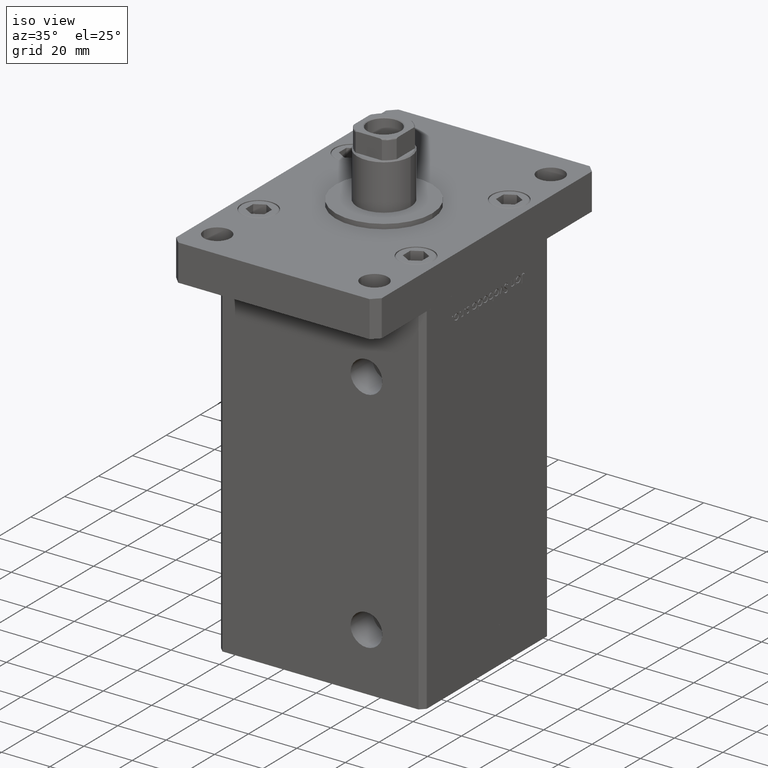
[diagram: clean part render]
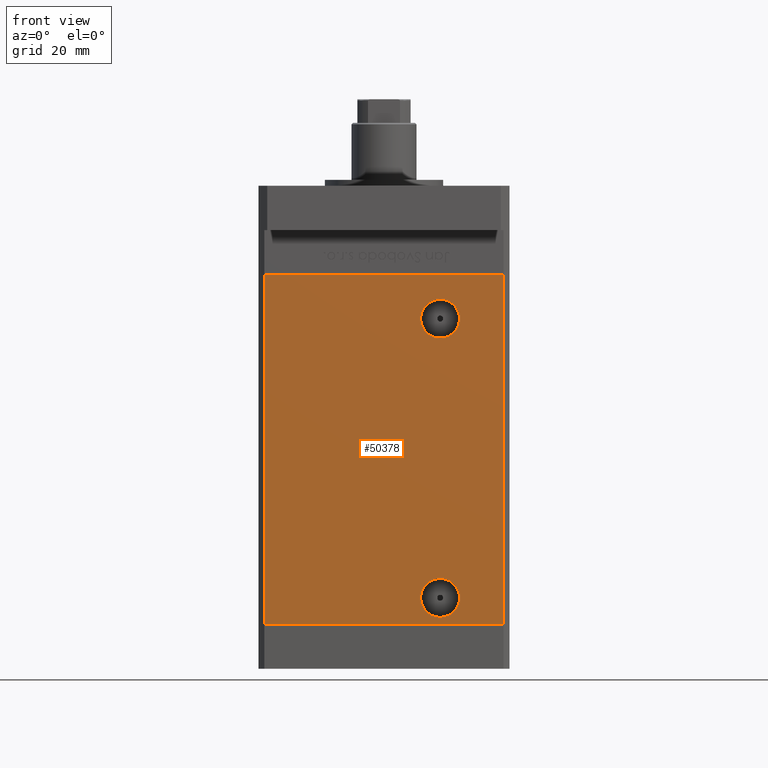
[diagram: tour spotlight — one face highlighted and labeled with its STEP entity id]
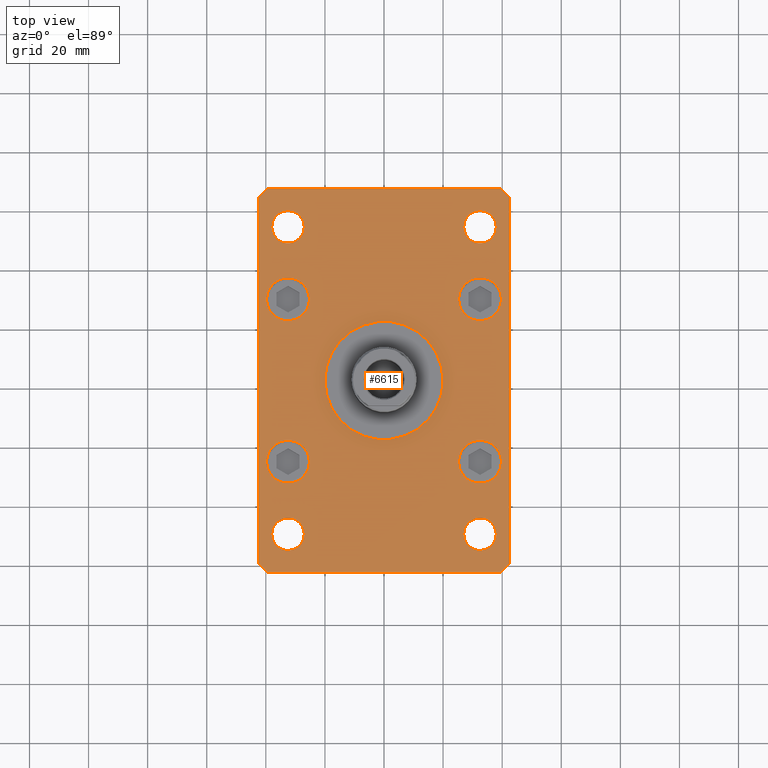
[diagram: tour spotlight — one face highlighted and labeled with its STEP entity id]
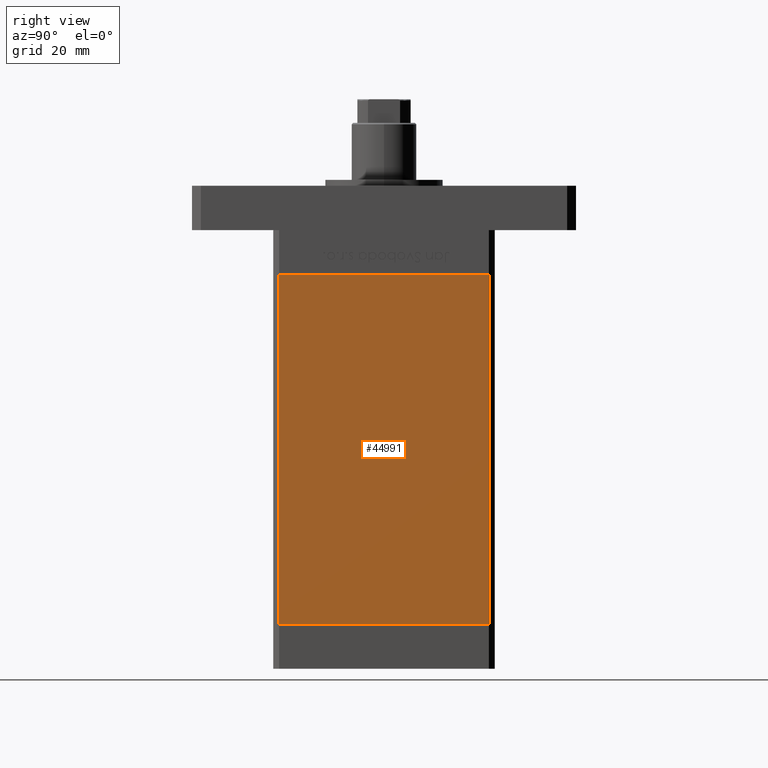
[diagram: tour spotlight — one face highlighted and labeled with its STEP entity id]
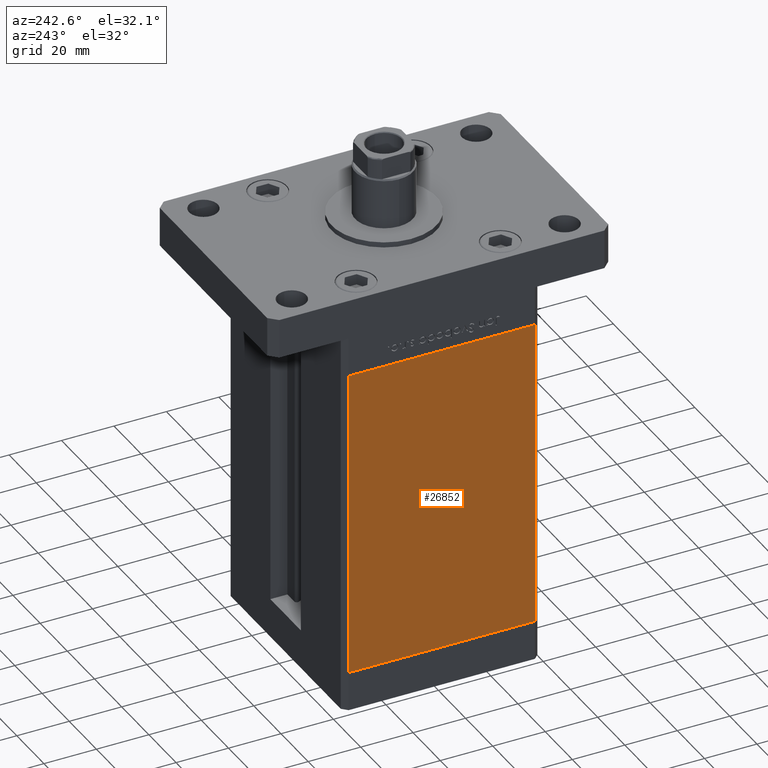
[diagram: tour spotlight — one face highlighted and labeled with its STEP entity id]
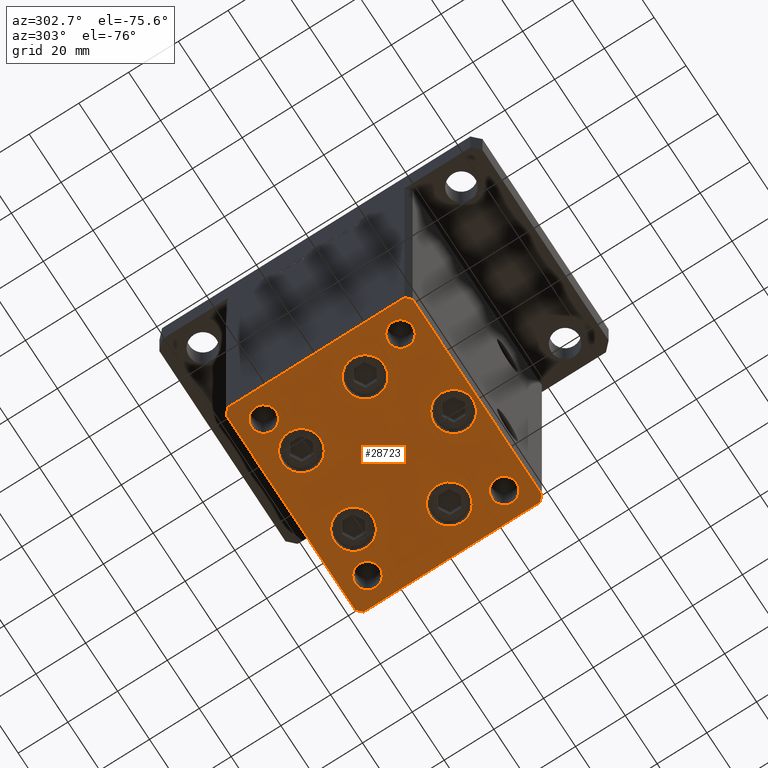
[diagram: tour spotlight — one face highlighted and labeled with its STEP entity id]
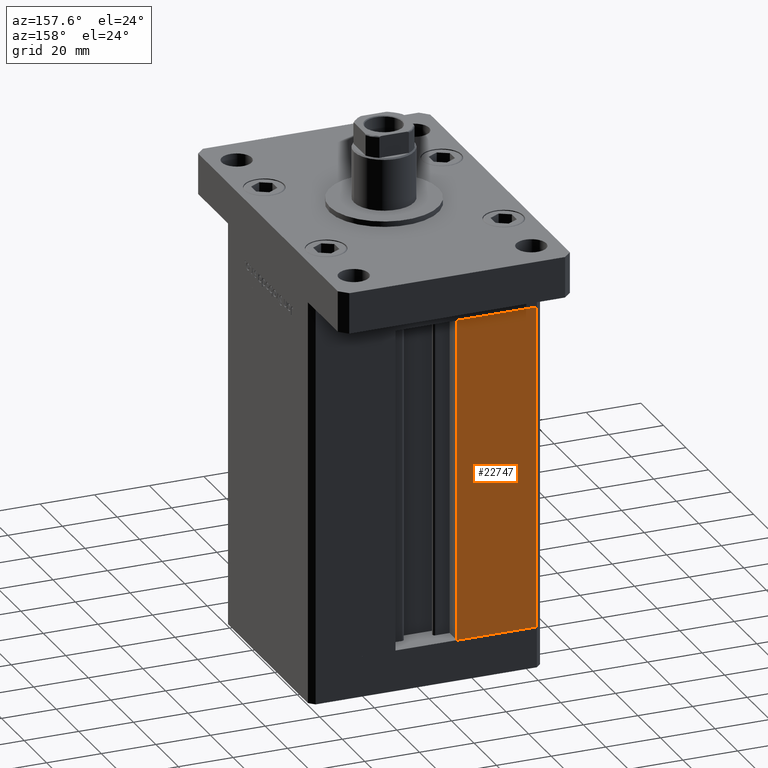
[diagram: tour spotlight — one face highlighted and labeled with its STEP entity id]
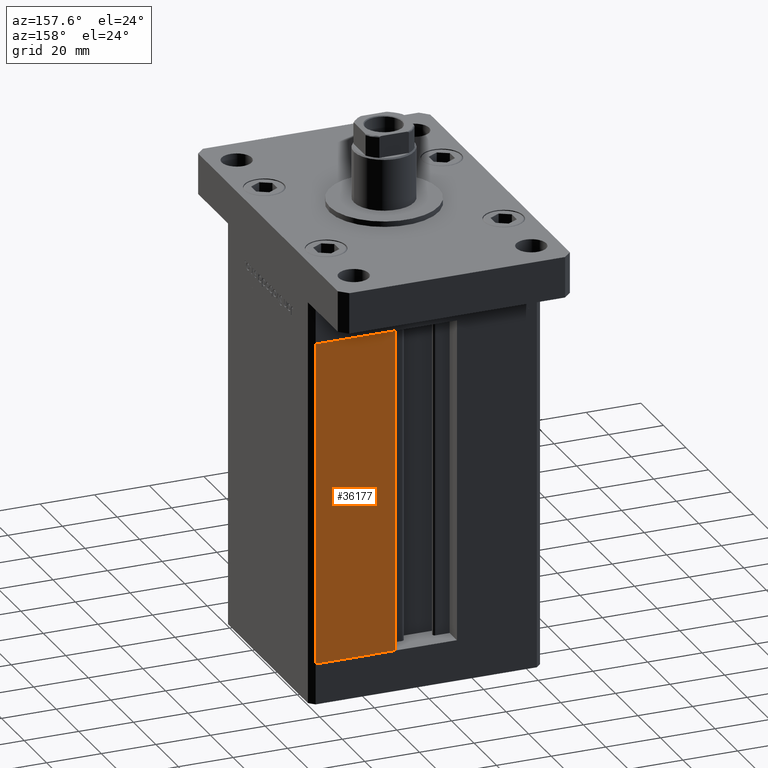
[diagram: tour spotlight — one face highlighted and labeled with its STEP entity id]
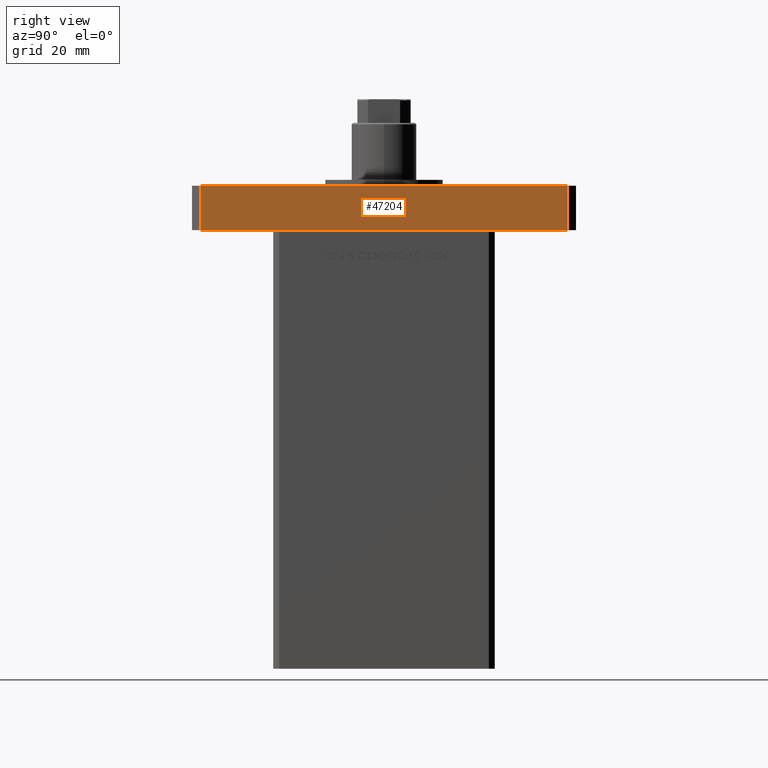
[diagram: tour spotlight — one face highlighted and labeled with its STEP entity id]
A machine part: a face-by-face anatomy tour. The part has 1310 B-rep faces; the first image is the clean iso view, then the 8 largest visible faces are spotlighted one at a time (largest first), each with its STEP entity span.

Face 1 — front view, entity #50378. In plain terms, the highlighted planar face has unit normal (0, 1, 0).
Definition (entity closure, byte-faithful):
#1258 = EDGE_CURVE ( 'NONE', #22597, #45026, #30681, .T. ) ;
#1263 = CARTESIAN_POINT ( 'NONE',  ( 18.99999999999998934, -37.50000000000000711, 2.419999999999995932 ) ) ;
#2033 = CIRCLE ( 'NONE', #22844, 6.580000000000002736 ) ;
#2380 = CIRCLE ( 'NONE', #42209, 6.580000000000002736 ) ;
#2958 = EDGE_LOOP ( 'NONE', ( #16520, #14462, #23598, #10727 ) ) ;
#3079 = DIRECTION ( 'NONE',  ( 0.000000000000000000, 0.000000000000000000, -1.000000000000000000 ) ) ;
#3696 = LINE ( 'NONE', #20248, #20515 ) ;
#3866 = VECTOR ( 'NONE', #5710, 1000.000000000000000 ) ;
#3893 = DIRECTION ( 'NONE',  ( 0.000000000000000000, 1.000000000000000000, 0.000000000000000000 ) ) ;
#5710 = DIRECTION ( 'NONE',  ( -0.000000000000000000, -0.000000000000000000, -1.000000000000000000 ) ) ;
#5769 = AXIS2_PLACEMENT_3D ( 'NONE', #17519, #41919, #30284 ) ;
#6116 = VERTEX_POINT ( 'NONE', #1263 ) ;
#6642 = LINE ( 'NONE', #23208, #41637 ) ;
#7805 = CARTESIAN_POINT ( 'NONE',  ( 40.49999999999998579, -37.50000000000000711, 0.000000000000000000 ) ) ;
#9725 = ORIENTED_EDGE ( 'NONE', *, *, #12359, .T. ) ;
#10727 = ORIENTED_EDGE ( 'NONE', *, *, #35274, .T. ) ;
#10898 = DIRECTION ( 'NONE',  ( -0.000000000000000000, -0.000000000000000000, -1.000000000000000000 ) ) ;
#11000 = DIRECTION ( 'NONE',  ( 0.000000000000000000, -1.000000000000000000, 0.000000000000000000 ) ) ;
#11163 = DIRECTION ( 'NONE',  ( -0.000000000000000000, 1.000000000000000000, -0.000000000000000000 ) ) ;
#11311 = CARTESIAN_POINT ( 'NONE',  ( 18.99999999999997868, -37.50000000000000711, 110.0799999999999983 ) ) ;
#11428 = DIRECTION ( 'NONE',  ( 0.000000000000000000, 0.000000000000000000, -1.000000000000000000 ) ) ;
#11685 = VERTEX_POINT ( 'NONE', #47011 ) ;
#11781 = FACE_BOUND ( 'NONE', #26816, .T. ) ;
#12359 = EDGE_CURVE ( 'NONE', #18920, #46629, #2380, .T. ) ;
#14060 = VERTEX_POINT ( 'NONE', #36977 ) ;
#14462 = ORIENTED_EDGE ( 'NONE', *, *, #1258, .F. ) ;
#16520 = ORIENTED_EDGE ( 'NONE', *, *, #23701, .T. ) ;
#17337 = ORIENTED_EDGE ( 'NONE', *, *, #49579, .T. ) ;
#17519 = CARTESIAN_POINT ( 'NONE',  ( 18.99999999999998934, -37.50000000000000711, 8.999999999999994671 ) ) ;
#17599 = AXIS2_PLACEMENT_3D ( 'NONE', #48667, #3893, #44343 ) ;
#18920 = VERTEX_POINT ( 'NONE', #11311 ) ;
#20248 = CARTESIAN_POINT ( 'NONE',  ( -40.49999999999998579, -37.50000000000000711, 0.000000000000000000 ) ) ;
#20515 = VECTOR ( 'NONE', #46989, 1000.000000000000000 ) ;
#21121 = ORIENTED_EDGE ( 'NONE', *, *, #38339, .F. ) ;
#21683 = EDGE_CURVE ( 'NONE', #6116, #14060, #34347, .T. ) ;
#22597 = VERTEX_POINT ( 'NONE', #50029 ) ;
#22844 = AXIS2_PLACEMENT_3D ( 'NONE', #47845, #44313, #3079 ) ;
#22948 = DIRECTION ( 'NONE',  ( 0.000000000000000000, 0.000000000000000000, -1.000000000000000000 ) ) ;
#23208 = CARTESIAN_POINT ( 'NONE',  ( -40.49999999999998579, -37.50000000000000711, 118.5000000000000000 ) ) ;
#23598 = ORIENTED_EDGE ( 'NONE', *, *, #42989, .F. ) ;
#23701 = EDGE_CURVE ( 'NONE', #50202, #45026, #3696, .T. ) ;
#24277 = FACE_BOUND ( 'NONE', #53120, .T. ) ;
#24533 = FACE_OUTER_BOUND ( 'NONE', #2958, .T. ) ;
#25293 = LINE ( 'NONE', #41827, #27735 ) ;
#26469 = DIRECTION ( 'NONE',  ( 1.000000000000000000, 0.000000000000000000, 0.000000000000000000 ) ) ;
#26816 = EDGE_LOOP ( 'NONE', ( #17337, #9725 ) ) ;
#27735 = VECTOR ( 'NONE', #10898, 1000.000000000000000 ) ;
#28339 = PLANE ( 'NONE',  #17599 ) ;
#30284 = DIRECTION ( 'NONE',  ( 0.000000000000000000, 0.000000000000000000, -1.000000000000000000 ) ) ;
#30407 = CIRCLE ( 'NONE', #46830, 6.579999999999998295 ) ;
#30681 = LINE ( 'NONE', #34741, #3866 ) ;
#31364 = CARTESIAN_POINT ( 'NONE',  ( 18.99999999999998934, -37.50000000000000711, 8.999999999999994671 ) ) ;
#33963 = CARTESIAN_POINT ( 'NONE',  ( 18.99999999999997868, -37.50000000000000711, 96.91999999999998749 ) ) ;
#34347 = CIRCLE ( 'NONE', #5769, 6.579999999999998295 ) ;
#34741 = CARTESIAN_POINT ( 'NONE',  ( 40.49999999999998579, -37.50000000000000711, 118.5000000000000000 ) ) ;
#35274 = EDGE_CURVE ( 'NONE', #11685, #50202, #25293, .T. ) ;
#36977 = CARTESIAN_POINT ( 'NONE',  ( 18.99999999999998934, -37.50000000000000711, 15.57999999999999297 ) ) ;
#38339 = EDGE_CURVE ( 'NONE', #14060, #6116, #30407, .T. ) ;
#41637 = VECTOR ( 'NONE', #26469, 1000.000000000000000 ) ;
#41827 = CARTESIAN_POINT ( 'NONE',  ( -40.49999999999998579, -37.50000000000000711, 118.5000000000000000 ) ) ;
#41919 = DIRECTION ( 'NONE',  ( 0.000000000000000000, -1.000000000000000000, 0.000000000000000000 ) ) ;
#42209 = AXIS2_PLACEMENT_3D ( 'NONE', #48298, #11163, #11428 ) ;
#42989 = EDGE_CURVE ( 'NONE', #11685, #22597, #6642, .T. ) ;
#44313 = DIRECTION ( 'NONE',  ( -0.000000000000000000, 1.000000000000000000, -0.000000000000000000 ) ) ;
#44343 = DIRECTION ( 'NONE',  ( 0.000000000000000000, -0.000000000000000000, 1.000000000000000000 ) ) ;
#45026 = VERTEX_POINT ( 'NONE', #7805 ) ;
#46629 = VERTEX_POINT ( 'NONE', #33963 ) ;
#46830 = AXIS2_PLACEMENT_3D ( 'NONE', #31364, #11000, #22948 ) ;
#46989 = DIRECTION ( 'NONE',  ( 1.000000000000000000, 0.000000000000000000, 0.000000000000000000 ) ) ;
#47011 = CARTESIAN_POINT ( 'NONE',  ( -40.49999999999998579, -37.50000000000000711, 118.5000000000000000 ) ) ;
#47603 = CARTESIAN_POINT ( 'NONE',  ( -40.49999999999998579, -37.50000000000000711, 0.000000000000000000 ) ) ;
#47845 = CARTESIAN_POINT ( 'NONE',  ( 18.99999999999997868, -37.50000000000000711, 103.5000000000000000 ) ) ;
#48298 = CARTESIAN_POINT ( 'NONE',  ( 18.99999999999997868, -37.50000000000000711, 103.5000000000000000 ) ) ;
#48667 = CARTESIAN_POINT ( 'NONE',  ( -40.49999999999998579, -37.50000000000000711, 118.5000000000000000 ) ) ;
#49315 = ORIENTED_EDGE ( 'NONE', *, *, #21683, .F. ) ;
#49579 = EDGE_CURVE ( 'NONE', #46629, #18920, #2033, .T. ) ;
#50029 = CARTESIAN_POINT ( 'NONE',  ( 40.49999999999998579, -37.50000000000000711, 118.5000000000000000 ) ) ;
#50202 = VERTEX_POINT ( 'NONE', #47603 ) ;
#50378 = ADVANCED_FACE ( 'NONE', ( #24277, #24533, #11781 ), #28339, .F. ) ;
#53120 = EDGE_LOOP ( 'NONE', ( #49315, #21121 ) ) ;

Face 2 — top view, entity #6615. In plain terms, the highlighted planar face has unit normal (0, 0, 1).
Definition (entity closure, byte-faithful):
#29 = EDGE_CURVE ( 'NONE', #11823, #31332, #1241, .T. ) ;
#605 = DIRECTION ( 'NONE',  ( 0.000000000000000000, 0.000000000000000000, 1.000000000000000000 ) ) ;
#1241 = CIRCLE ( 'NONE', #9027, 5.499999999999994671 ) ;
#1306 = LINE ( 'NONE', #30901, #16114 ) ;
#1524 = DIRECTION ( 'NONE',  ( 0.7071067811865483499, -0.7071067811865466846, 0.000000000000000000 ) ) ;
#1936 = DIRECTION ( 'NONE',  ( 1.000000000000000000, 1.405345600791337191E-15, 0.000000000000000000 ) ) ;
#2397 = DIRECTION ( 'NONE',  ( 0.000000000000000000, 1.000000000000000000, 0.000000000000000000 ) ) ;
#2816 = CARTESIAN_POINT ( 'NONE',  ( -32.50000000000000711, 27.50000000000000000, 15.00000000000000000 ) ) ;
#2889 = ORIENTED_EDGE ( 'NONE', *, *, #23948, .F. ) ;
#3223 = VERTEX_POINT ( 'NONE', #14888 ) ;
#3371 = DIRECTION ( 'NONE',  ( 1.000000000000000000, 0.000000000000000000, 0.000000000000000000 ) ) ;
#3458 = DIRECTION ( 'NONE',  ( 1.000000000000000000, 0.000000000000000000, -0.000000000000000000 ) ) ;
#3722 = DIRECTION ( 'NONE',  ( 1.000000000000000000, 0.000000000000000000, 0.000000000000000000 ) ) ;
#3764 = AXIS2_PLACEMENT_3D ( 'NONE', #15595, #23736, #19936 ) ;
#3921 = CARTESIAN_POINT ( 'NONE',  ( -25.25000000000000711, 27.50000000000000000, 15.00000000000000000 ) ) ;
#4015 = EDGE_CURVE ( 'NONE', #29528, #30064, #1306, .T. ) ;
#4077 = AXIS2_PLACEMENT_3D ( 'NONE', #13296, #16299, #21455 ) ;
#4575 = EDGE_CURVE ( 'NONE', #40810, #39216, #47761, .T. ) ;
#5323 = EDGE_CURVE ( 'NONE', #9778, #40651, #10131, .T. ) ;
#5770 = ORIENTED_EDGE ( 'NONE', *, *, #47506, .F. ) ;
#6010 = CARTESIAN_POINT ( 'NONE',  ( -39.50000000000000000, -65.00000000000000000, 15.00000000000000000 ) ) ;
#6462 = LINE ( 'NONE', #23015, #25451 ) ;
#6615 = ADVANCED_FACE ( 'NONE', ( #36544, #53338, #7797, #24350, #53087, #40881, #7521, #20268, #32473, #24090 ), #32739, .T. ) ;
#6689 = VERTEX_POINT ( 'NONE', #37334 ) ;
#6708 = DIRECTION ( 'NONE',  ( 0.000000000000000000, 0.000000000000000000, 1.000000000000000000 ) ) ;
#6712 = ORIENTED_EDGE ( 'NONE', *, *, #29, .F. ) ;
#7118 = DIRECTION ( 'NONE',  ( 1.000000000000000000, 0.000000000000000000, 0.000000000000000000 ) ) ;
#7480 = VECTOR ( 'NONE', #1936, 1000.000000000000000 ) ;
#7521 = FACE_BOUND ( 'NONE', #49536, .T. ) ;
#7561 = VERTEX_POINT ( 'NONE', #9754 ) ;
#7743 = DIRECTION ( 'NONE',  ( 1.000000000000000000, 0.000000000000000000, 0.000000000000000000 ) ) ;
#7797 = FACE_BOUND ( 'NONE', #18474, .T. ) ;
#8200 = CARTESIAN_POINT ( 'NONE',  ( 39.50000000000002842, 65.00000000000002842, 15.00000000000000000 ) ) ;
#8402 = CARTESIAN_POINT ( 'NONE',  ( 27.00000000000001421, 51.99999999999999289, 15.00000000000000000 ) ) ;
#8745 = LINE ( 'NONE', #25834, #36681 ) ;
#8754 = DIRECTION ( 'NONE',  ( 1.000000000000000000, 0.000000000000000000, 0.000000000000000000 ) ) ;
#9027 = AXIS2_PLACEMENT_3D ( 'NONE', #47929, #6708, #19996 ) ;
#9647 = VERTEX_POINT ( 'NONE', #50250 ) ;
#9752 = EDGE_CURVE ( 'NONE', #30064, #38889, #17711, .T. ) ;
#9754 = CARTESIAN_POINT ( 'NONE',  ( 25.25000000000000000, 27.50000000000000000, 15.00000000000000000 ) ) ;
#9778 = VERTEX_POINT ( 'NONE', #34260 ) ;
#9835 = VERTEX_POINT ( 'NONE', #10656 ) ;
#10131 = CIRCLE ( 'NONE', #39600, 7.249999999999999112 ) ;
#10656 = CARTESIAN_POINT ( 'NONE',  ( 26.99999999999998579, -52.00000000000000711, 15.00000000000000000 ) ) ;
#11633 = ORIENTED_EDGE ( 'NONE', *, *, #48726, .F. ) ;
#11823 = VERTEX_POINT ( 'NONE', #41156 ) ;
#11956 = CIRCLE ( 'NONE', #14572, 5.499999999999991118 ) ;
#12023 = CARTESIAN_POINT ( 'NONE',  ( 32.50000000000000000, 27.50000000000000000, 15.00000000000000000 ) ) ;
#12038 = CARTESIAN_POINT ( 'NONE',  ( -39.75000000000000000, -27.50000000000000000, 15.00000000000000000 ) ) ;
#12046 = DIRECTION ( 'NONE',  ( -0.7071067811865417996, 0.7071067811865532349, 0.000000000000000000 ) ) ;
#12065 = ORIENTED_EDGE ( 'NONE', *, *, #4575, .T. ) ;
#12220 = VERTEX_POINT ( 'NONE', #3921 ) ;
#12400 = DIRECTION ( 'NONE',  ( 1.000000000000000000, 0.000000000000000000, 0.000000000000000000 ) ) ;
#12415 = EDGE_CURVE ( 'NONE', #27605, #31100, #13641, .T. ) ;
#12512 = VERTEX_POINT ( 'NONE', #47442 ) ;
#12738 = DIRECTION ( 'NONE',  ( 0.000000000000000000, 0.000000000000000000, 1.000000000000000000 ) ) ;
#13084 = ORIENTED_EDGE ( 'NONE', *, *, #26455, .T. ) ;
#13296 = CARTESIAN_POINT ( 'NONE',  ( -32.50000000000000000, -27.50000000000000000, 15.00000000000000000 ) ) ;
#13474 = ORIENTED_EDGE ( 'NONE', *, *, #19486, .F. ) ;
#13641 = CIRCLE ( 'NONE', #22335, 20.00000000000000000 ) ;
#13950 = EDGE_CURVE ( 'NONE', #3223, #23152, #53502, .T. ) ;
#14281 = CARTESIAN_POINT ( 'NONE',  ( -42.49999999999999289, -62.00000000000001421, 15.00000000000000000 ) ) ;
#14492 = AXIS2_PLACEMENT_3D ( 'NONE', #20063, #19523, #36593 ) ;
#14520 = DIRECTION ( 'NONE',  ( 0.000000000000000000, 0.000000000000000000, 1.000000000000000000 ) ) ;
#14572 = AXIS2_PLACEMENT_3D ( 'NONE', #18318, #14520, #26457 ) ;
#14655 = EDGE_CURVE ( 'NONE', #9835, #41794, #19812, .T. ) ;
#14888 = CARTESIAN_POINT ( 'NONE',  ( -27.00000000000000711, 52.00000000000000000, 15.00000000000000000 ) ) ;
#15300 = ORIENTED_EDGE ( 'NONE', *, *, #14655, .F. ) ;
#15595 = CARTESIAN_POINT ( 'NONE',  ( -32.50000000000000000, 52.00000000000000000, 15.00000000000000000 ) ) ;
#15817 = CIRCLE ( 'NONE', #38310, 7.249999999999999112 ) ;
#15843 = DIRECTION ( 'NONE',  ( 0.000000000000000000, 0.000000000000000000, 1.000000000000000000 ) ) ;
#15878 = CARTESIAN_POINT ( 'NONE',  ( 32.50000000000000000, -27.50000000000000000, 15.00000000000000000 ) ) ;
#15907 = EDGE_CURVE ( 'NONE', #22634, #7561, #33688, .T. ) ;
#16070 = DIRECTION ( 'NONE',  ( -1.000000000000000000, -3.513364001978340512E-16, 0.000000000000000000 ) ) ;
#16114 = VECTOR ( 'NONE', #34695, 1000.000000000000000 ) ;
#16299 = DIRECTION ( 'NONE',  ( 0.000000000000000000, 0.000000000000000000, 1.000000000000000000 ) ) ;
#17463 = CARTESIAN_POINT ( 'NONE',  ( -39.75000000000000711, 27.50000000000000000, 15.00000000000000000 ) ) ;
#17492 = ORIENTED_EDGE ( 'NONE', *, *, #4015, .T. ) ;
#17711 = LINE ( 'NONE', #34802, #27572 ) ;
#17977 = CARTESIAN_POINT ( 'NONE',  ( 0.000000000000000000, 0.000000000000000000, 15.00000000000000000 ) ) ;
#18035 = ORIENTED_EDGE ( 'NONE', *, *, #5323, .F. ) ;
#18240 = CARTESIAN_POINT ( 'NONE',  ( -20.00000000000000000, 0.000000000000000000, 15.00000000000000000 ) ) ;
#18318 = CARTESIAN_POINT ( 'NONE',  ( 32.50000000000000000, 51.99999999999999289, 15.00000000000000000 ) ) ;
#18358 = AXIS2_PLACEMENT_3D ( 'NONE', #40207, #27748, #7118 ) ;
#18462 = CARTESIAN_POINT ( 'NONE',  ( -37.99999999999997868, -52.00000000000000711, 15.00000000000000000 ) ) ;
#18474 = EDGE_LOOP ( 'NONE', ( #41065, #18035 ) ) ;
#18597 = CARTESIAN_POINT ( 'NONE',  ( 37.99999999999997868, -52.00000000000000711, 15.00000000000000000 ) ) ;
#18839 = DIRECTION ( 'NONE',  ( 1.000000000000000000, 0.000000000000000000, 0.000000000000000000 ) ) ;
#19486 = EDGE_CURVE ( 'NONE', #7561, #22634, #45030, .T. ) ;
#19523 = DIRECTION ( 'NONE',  ( 0.000000000000000000, 0.000000000000000000, 1.000000000000000000 ) ) ;
#19715 = AXIS2_PLACEMENT_3D ( 'NONE', #35479, #44406, #36274 ) ;
#19812 = CIRCLE ( 'NONE', #28482, 5.499999999999998224 ) ;
#19936 = DIRECTION ( 'NONE',  ( 1.000000000000000000, 0.000000000000000000, 0.000000000000000000 ) ) ;
#19996 = DIRECTION ( 'NONE',  ( 1.000000000000000000, 0.000000000000000000, 0.000000000000000000 ) ) ;
#20063 = CARTESIAN_POINT ( 'NONE',  ( 32.50000000000000000, 51.99999999999999289, 15.00000000000000000 ) ) ;
#20196 = ORIENTED_EDGE ( 'NONE', *, *, #13950, .F. ) ;
#20231 = CIRCLE ( 'NONE', #3764, 5.499999999999994671 ) ;
#20268 = FACE_BOUND ( 'NONE', #49656, .T. ) ;
#20277 = CARTESIAN_POINT ( 'NONE',  ( -32.50000000000000711, 27.50000000000000000, 15.00000000000000000 ) ) ;
#21455 = DIRECTION ( 'NONE',  ( 1.000000000000000000, 0.000000000000000000, 0.000000000000000000 ) ) ;
#21589 = AXIS2_PLACEMENT_3D ( 'NONE', #12023, #31848, #40512 ) ;
#21847 = ORIENTED_EDGE ( 'NONE', *, *, #12415, .F. ) ;
#21850 = CARTESIAN_POINT ( 'NONE',  ( 39.75000000000000000, 27.50000000000000000, 15.00000000000000000 ) ) ;
#21894 = LINE ( 'NONE', #14281, #51252 ) ;
#21900 = DIRECTION ( 'NONE',  ( 0.000000000000000000, 0.000000000000000000, 1.000000000000000000 ) ) ;
#22273 = VERTEX_POINT ( 'NONE', #8402 ) ;
#22318 = CIRCLE ( 'NONE', #19715, 5.499999999999994671 ) ;
#22320 = ORIENTED_EDGE ( 'NONE', *, *, #15907, .F. ) ;
#22335 = AXIS2_PLACEMENT_3D ( 'NONE', #24698, #12738, #42303 ) ;
#22634 = VERTEX_POINT ( 'NONE', #21850 ) ;
#23015 = CARTESIAN_POINT ( 'NONE',  ( 42.50000000000000000, -61.99999999999988631, 15.00000000000000000 ) ) ;
#23152 = VERTEX_POINT ( 'NONE', #36898 ) ;
#23238 = CARTESIAN_POINT ( 'NONE',  ( 32.49999999999997868, -52.00000000000000711, 15.00000000000000000 ) ) ;
#23264 = EDGE_LOOP ( 'NONE', ( #44329, #11633 ) ) ;
#23736 = DIRECTION ( 'NONE',  ( 0.000000000000000000, 0.000000000000000000, 1.000000000000000000 ) ) ;
#23948 = EDGE_CURVE ( 'NONE', #42180, #29187, #41342, .T. ) ;
#24087 = EDGE_CURVE ( 'NONE', #6689, #22273, #33561, .T. ) ;
#24090 = FACE_BOUND ( 'NONE', #42860, .T. ) ;
#24282 = AXIS2_PLACEMENT_3D ( 'NONE', #17977, #605, #8754 ) ;
#24350 = FACE_BOUND ( 'NONE', #30129, .T. ) ;
#24381 = EDGE_CURVE ( 'NONE', #31332, #11823, #22318, .T. ) ;
#24674 = CARTESIAN_POINT ( 'NONE',  ( -39.50000000000000000, -65.00000000000000000, 15.00000000000000000 ) ) ;
#24698 = CARTESIAN_POINT ( 'NONE',  ( 0.000000000000000000, 0.000000000000000000, 15.00000000000000000 ) ) ;
#24787 = LINE ( 'NONE', #53255, #32785 ) ;
#24972 = EDGE_LOOP ( 'NONE', ( #28037, #6712 ) ) ;
#25451 = VECTOR ( 'NONE', #2397, 1000.000000000000000 ) ;
#25699 = VECTOR ( 'NONE', #16070, 1000.000000000000000 ) ;
#25834 = CARTESIAN_POINT ( 'NONE',  ( 39.50000000000001421, -64.99999999999988631, 15.00000000000000000 ) ) ;
#26284 = EDGE_CURVE ( 'NONE', #40651, #9778, #48224, .T. ) ;
#26455 = EDGE_CURVE ( 'NONE', #12512, #29528, #32110, .T. ) ;
#26457 = DIRECTION ( 'NONE',  ( 1.000000000000000000, 0.000000000000000000, 0.000000000000000000 ) ) ;
#27522 = DIRECTION ( 'NONE',  ( 0.000000000000000000, 0.000000000000000000, 1.000000000000000000 ) ) ;
#27524 = CARTESIAN_POINT ( 'NONE',  ( -39.50000000000003553, 65.00000000000000000, 15.00000000000000000 ) ) ;
#27572 = VECTOR ( 'NONE', #42932, 1000.000000000000000 ) ;
#27605 = VERTEX_POINT ( 'NONE', #18240 ) ;
#27748 = DIRECTION ( 'NONE',  ( 0.000000000000000000, 0.000000000000000000, 1.000000000000000000 ) ) ;
#28037 = ORIENTED_EDGE ( 'NONE', *, *, #24381, .F. ) ;
#28482 = AXIS2_PLACEMENT_3D ( 'NONE', #37613, #34369, #12400 ) ;
#28825 = CIRCLE ( 'NONE', #50490, 7.249999999999999112 ) ;
#29187 = VERTEX_POINT ( 'NONE', #41957 ) ;
#29217 = DIRECTION ( 'NONE',  ( 0.000000000000000000, 0.000000000000000000, 1.000000000000000000 ) ) ;
#29493 = ORIENTED_EDGE ( 'NONE', *, *, #9752, .T. ) ;
#29528 = VERTEX_POINT ( 'NONE', #27524 ) ;
#30064 = VERTEX_POINT ( 'NONE', #52268 ) ;
#30129 = EDGE_LOOP ( 'NONE', ( #51488, #20196 ) ) ;
#30755 = EDGE_CURVE ( 'NONE', #22273, #6689, #11956, .T. ) ;
#30901 = CARTESIAN_POINT ( 'NONE',  ( -39.50000000000003553, 65.00000000000000000, 15.00000000000000000 ) ) ;
#31100 = VERTEX_POINT ( 'NONE', #36119 ) ;
#31187 = CIRCLE ( 'NONE', #24282, 20.00000000000000000 ) ;
#31332 = VERTEX_POINT ( 'NONE', #18462 ) ;
#31575 = DIRECTION ( 'NONE',  ( 1.000000000000000000, 0.000000000000000000, 0.000000000000000000 ) ) ;
#31633 = DIRECTION ( 'NONE',  ( 0.000000000000000000, 0.000000000000000000, 1.000000000000000000 ) ) ;
#31718 = EDGE_CURVE ( 'NONE', #9647, #12512, #24787, .T. ) ;
#31848 = DIRECTION ( 'NONE',  ( 0.000000000000000000, 0.000000000000000000, 1.000000000000000000 ) ) ;
#32110 = LINE ( 'NONE', #8200, #25699 ) ;
#32448 = ORIENTED_EDGE ( 'NONE', *, *, #45120, .T. ) ;
#32473 = FACE_BOUND ( 'NONE', #48439, .T. ) ;
#32739 = PLANE ( 'NONE',  #36937 ) ;
#32785 = VECTOR ( 'NONE', #12046, 1000.000000000000000 ) ;
#33080 = CIRCLE ( 'NONE', #49529, 7.249999999999999112 ) ;
#33561 = CIRCLE ( 'NONE', #14492, 5.499999999999991118 ) ;
#33688 = CIRCLE ( 'NONE', #21589, 7.249999999999999112 ) ;
#33937 = EDGE_LOOP ( 'NONE', ( #21847, #47393 ) ) ;
#34260 = CARTESIAN_POINT ( 'NONE',  ( 39.75000000000000000, -27.50000000000000000, 15.00000000000000000 ) ) ;
#34369 = DIRECTION ( 'NONE',  ( 0.000000000000000000, 0.000000000000000000, 1.000000000000000000 ) ) ;
#34388 = ORIENTED_EDGE ( 'NONE', *, *, #49811, .T. ) ;
#34695 = DIRECTION ( 'NONE',  ( -0.7071067811865466846, -0.7071067811865483499, 0.000000000000000000 ) ) ;
#34802 = CARTESIAN_POINT ( 'NONE',  ( -42.50000000000002132, 62.00000000000000711, 15.00000000000000000 ) ) ;
#35479 = CARTESIAN_POINT ( 'NONE',  ( -32.49999999999997868, -52.00000000000000711, 15.00000000000000000 ) ) ;
#35910 = EDGE_CURVE ( 'NONE', #31100, #27605, #31187, .T. ) ;
#36119 = CARTESIAN_POINT ( 'NONE',  ( 20.00000000000000000, 2.449293598294706513E-15, 15.00000000000000000 ) ) ;
#36217 = AXIS2_PLACEMENT_3D ( 'NONE', #44592, #15843, #3371 ) ;
#36274 = DIRECTION ( 'NONE',  ( 1.000000000000000000, 0.000000000000000000, 0.000000000000000000 ) ) ;
#36544 = FACE_BOUND ( 'NONE', #33937, .T. ) ;
#36593 = DIRECTION ( 'NONE',  ( 1.000000000000000000, 0.000000000000000000, 0.000000000000000000 ) ) ;
#36676 = CARTESIAN_POINT ( 'NONE',  ( -42.49999999999999289, -62.00000000000001421, 15.00000000000000000 ) ) ;
#36681 = VECTOR ( 'NONE', #41828, 1000.000000000000114 ) ;
#36776 = ORIENTED_EDGE ( 'NONE', *, *, #24087, .F. ) ;
#36898 = CARTESIAN_POINT ( 'NONE',  ( -38.00000000000000000, 52.00000000000000000, 15.00000000000000000 ) ) ;
#36937 = AXIS2_PLACEMENT_3D ( 'NONE', #48477, #40624, #3458 ) ;
#37334 = CARTESIAN_POINT ( 'NONE',  ( 37.99999999999999289, 51.99999999999999289, 15.00000000000000000 ) ) ;
#37613 = CARTESIAN_POINT ( 'NONE',  ( 32.49999999999997868, -52.00000000000000711, 15.00000000000000000 ) ) ;
#38149 = CARTESIAN_POINT ( 'NONE',  ( 39.50000000000001421, -64.99999999999988631, 15.00000000000000000 ) ) ;
#38194 = ORIENTED_EDGE ( 'NONE', *, *, #51272, .T. ) ;
#38310 = AXIS2_PLACEMENT_3D ( 'NONE', #20277, #29217, #3722 ) ;
#38429 = DIRECTION ( 'NONE',  ( 1.000000000000000000, 0.000000000000000000, 0.000000000000000000 ) ) ;
#38467 = ORIENTED_EDGE ( 'NONE', *, *, #31718, .T. ) ;
#38889 = VERTEX_POINT ( 'NONE', #36676 ) ;
#39216 = VERTEX_POINT ( 'NONE', #38149 ) ;
#39600 = AXIS2_PLACEMENT_3D ( 'NONE', #15878, #45681, #7743 ) ;
#40207 = CARTESIAN_POINT ( 'NONE',  ( 32.50000000000000000, 27.50000000000000000, 15.00000000000000000 ) ) ;
#40422 = AXIS2_PLACEMENT_3D ( 'NONE', #47833, #51647, #31575 ) ;
#40439 = VERTEX_POINT ( 'NONE', #17463 ) ;
#40512 = DIRECTION ( 'NONE',  ( 1.000000000000000000, 0.000000000000000000, 0.000000000000000000 ) ) ;
#40624 = DIRECTION ( 'NONE',  ( 0.000000000000000000, 0.000000000000000000, 1.000000000000000000 ) ) ;
#40651 = VERTEX_POINT ( 'NONE', #43164 ) ;
#40810 = VERTEX_POINT ( 'NONE', #24674 ) ;
#40881 = FACE_OUTER_BOUND ( 'NONE', #51699, .T. ) ;
#41065 = ORIENTED_EDGE ( 'NONE', *, *, #26284, .F. ) ;
#41156 = CARTESIAN_POINT ( 'NONE',  ( -26.99999999999998579, -52.00000000000000711, 15.00000000000000000 ) ) ;
#41342 = CIRCLE ( 'NONE', #4077, 7.249999999999999112 ) ;
#41783 = CIRCLE ( 'NONE', #46116, 5.499999999999998224 ) ;
#41794 = VERTEX_POINT ( 'NONE', #18597 ) ;
#41828 = DIRECTION ( 'NONE',  ( 0.7071067811865459074, 0.7071067811865491270, 0.000000000000000000 ) ) ;
#41957 = CARTESIAN_POINT ( 'NONE',  ( -25.25000000000000000, -27.50000000000000000, 15.00000000000000000 ) ) ;
#42180 = VERTEX_POINT ( 'NONE', #12038 ) ;
#42303 = DIRECTION ( 'NONE',  ( 1.000000000000000000, 0.000000000000000000, 0.000000000000000000 ) ) ;
#42497 = CARTESIAN_POINT ( 'NONE',  ( -32.50000000000000000, -27.50000000000000000, 15.00000000000000000 ) ) ;
#42860 = EDGE_LOOP ( 'NONE', ( #15300, #5770 ) ) ;
#42932 = DIRECTION ( 'NONE',  ( 2.238352872228137677E-16, -1.000000000000000000, 0.000000000000000000 ) ) ;
#43164 = CARTESIAN_POINT ( 'NONE',  ( 25.25000000000000000, -27.50000000000000000, 15.00000000000000000 ) ) ;
#44329 = ORIENTED_EDGE ( 'NONE', *, *, #47324, .F. ) ;
#44406 = DIRECTION ( 'NONE',  ( 0.000000000000000000, 0.000000000000000000, 1.000000000000000000 ) ) ;
#44416 = VERTEX_POINT ( 'NONE', #46850 ) ;
#44592 = CARTESIAN_POINT ( 'NONE',  ( -32.50000000000000000, 52.00000000000000000, 15.00000000000000000 ) ) ;
#45030 = CIRCLE ( 'NONE', #18358, 7.249999999999999112 ) ;
#45120 = EDGE_CURVE ( 'NONE', #38889, #40810, #21894, .T. ) ;
#45681 = DIRECTION ( 'NONE',  ( 0.000000000000000000, 0.000000000000000000, 1.000000000000000000 ) ) ;
#46037 = EDGE_CURVE ( 'NONE', #29187, #42180, #33080, .T. ) ;
#46116 = AXIS2_PLACEMENT_3D ( 'NONE', #23238, #31633, #51709 ) ;
#46311 = ORIENTED_EDGE ( 'NONE', *, *, #30755, .F. ) ;
#46850 = CARTESIAN_POINT ( 'NONE',  ( 42.50000000000000000, -61.99999999999988631, 15.00000000000000000 ) ) ;
#47324 = EDGE_CURVE ( 'NONE', #40439, #12220, #15817, .T. ) ;
#47393 = ORIENTED_EDGE ( 'NONE', *, *, #35910, .F. ) ;
#47442 = CARTESIAN_POINT ( 'NONE',  ( 39.50000000000002842, 65.00000000000002842, 15.00000000000000000 ) ) ;
#47506 = EDGE_CURVE ( 'NONE', #41794, #9835, #41783, .T. ) ;
#47761 = LINE ( 'NONE', #6010, #7480 ) ;
#47833 = CARTESIAN_POINT ( 'NONE',  ( 32.50000000000000000, -27.50000000000000000, 15.00000000000000000 ) ) ;
#47929 = CARTESIAN_POINT ( 'NONE',  ( -32.49999999999997868, -52.00000000000000711, 15.00000000000000000 ) ) ;
#48224 = CIRCLE ( 'NONE', #40422, 7.249999999999999112 ) ;
#48439 = EDGE_LOOP ( 'NONE', ( #13474, #22320 ) ) ;
#48477 = CARTESIAN_POINT ( 'NONE',  ( 0.000000000000000000, 0.000000000000000000, 15.00000000000000000 ) ) ;
#48726 = EDGE_CURVE ( 'NONE', #12220, #40439, #28825, .T. ) ;
#49529 = AXIS2_PLACEMENT_3D ( 'NONE', #42497, #21900, #38429 ) ;
#49536 = EDGE_LOOP ( 'NONE', ( #46311, #36776 ) ) ;
#49656 = EDGE_LOOP ( 'NONE', ( #2889, #50816 ) ) ;
#49811 = EDGE_CURVE ( 'NONE', #39216, #44416, #8745, .T. ) ;
#50250 = CARTESIAN_POINT ( 'NONE',  ( 42.50000000000000000, 62.00000000000000711, 15.00000000000000000 ) ) ;
#50330 = EDGE_CURVE ( 'NONE', #23152, #3223, #20231, .T. ) ;
#50490 = AXIS2_PLACEMENT_3D ( 'NONE', #2816, #27522, #18839 ) ;
#50816 = ORIENTED_EDGE ( 'NONE', *, *, #46037, .F. ) ;
#51252 = VECTOR ( 'NONE', #1524, 1000.000000000000000 ) ;
#51272 = EDGE_CURVE ( 'NONE', #44416, #9647, #6462, .T. ) ;
#51488 = ORIENTED_EDGE ( 'NONE', *, *, #50330, .F. ) ;
#51647 = DIRECTION ( 'NONE',  ( 0.000000000000000000, 0.000000000000000000, 1.000000000000000000 ) ) ;
#51699 = EDGE_LOOP ( 'NONE', ( #12065, #34388, #38194, #38467, #13084, #17492, #29493, #32448 ) ) ;
#51709 = DIRECTION ( 'NONE',  ( 1.000000000000000000, 0.000000000000000000, 0.000000000000000000 ) ) ;
#52268 = CARTESIAN_POINT ( 'NONE',  ( -42.50000000000002132, 62.00000000000000711, 15.00000000000000000 ) ) ;
#53087 = FACE_BOUND ( 'NONE', #24972, .T. ) ;
#53255 = CARTESIAN_POINT ( 'NONE',  ( 42.50000000000000000, 62.00000000000000711, 15.00000000000000000 ) ) ;
#53338 = FACE_BOUND ( 'NONE', #23264, .T. ) ;
#53502 = CIRCLE ( 'NONE', #36217, 5.499999999999994671 ) ;

Face 3 — right view, entity #44991. In plain terms, the highlighted planar face has unit normal (1, -0, 0).
Definition (entity closure, byte-faithful):
#790 = CARTESIAN_POINT ( 'NONE',  ( 42.50000000000000711, 35.50000000000001421, 118.5000000000000000 ) ) ;
#3080 = VERTEX_POINT ( 'NONE', #43959 ) ;
#3721 = CARTESIAN_POINT ( 'NONE',  ( 42.50000000000000711, 35.50000000000001421, 118.5000000000000000 ) ) ;
#3822 = DIRECTION ( 'NONE',  ( -2.931927001650941360E-16, -1.000000000000000000, 0.000000000000000000 ) ) ;
#6139 = CARTESIAN_POINT ( 'NONE',  ( 42.50000000000000711, 35.50000000000001421, 118.5000000000000000 ) ) ;
#7009 = PLANE ( 'NONE',  #25260 ) ;
#7240 = EDGE_CURVE ( 'NONE', #3080, #43110, #8718, .T. ) ;
#7639 = EDGE_CURVE ( 'NONE', #24917, #3080, #21697, .T. ) ;
#8718 = LINE ( 'NONE', #20669, #49130 ) ;
#10036 = EDGE_CURVE ( 'NONE', #39151, #43110, #53456, .T. ) ;
#11604 = DIRECTION ( 'NONE',  ( 2.931927001650941360E-16, 1.000000000000000000, 0.000000000000000000 ) ) ;
#11843 = ORIENTED_EDGE ( 'NONE', *, *, #7240, .T. ) ;
#12137 = DIRECTION ( 'NONE',  ( 1.000000000000000000, -2.931927001650941360E-16, 0.000000000000000000 ) ) ;
#19505 = EDGE_LOOP ( 'NONE', ( #35121, #33665, #50304, #11843 ) ) ;
#19775 = VECTOR ( 'NONE', #3822, 1000.000000000000000 ) ;
#20669 = CARTESIAN_POINT ( 'NONE',  ( 42.49999999999998579, -35.50000000000000711, 118.5000000000000000 ) ) ;
#21697 = LINE ( 'NONE', #790, #43082 ) ;
#22226 = DIRECTION ( 'NONE',  ( -2.931927001650941360E-16, -1.000000000000000000, 0.000000000000000000 ) ) ;
#24917 = VERTEX_POINT ( 'NONE', #26144 ) ;
#25260 = AXIS2_PLACEMENT_3D ( 'NONE', #3721, #12137, #11604 ) ;
#26144 = CARTESIAN_POINT ( 'NONE',  ( 42.50000000000000711, 35.50000000000001421, 118.5000000000000000 ) ) ;
#26770 = LINE ( 'NONE', #6139, #31337 ) ;
#31337 = VECTOR ( 'NONE', #43297, 1000.000000000000000 ) ;
#33665 = ORIENTED_EDGE ( 'NONE', *, *, #39329, .F. ) ;
#34264 = CARTESIAN_POINT ( 'NONE',  ( 42.49999999999998579, -35.50000000000000711, 0.000000000000000000 ) ) ;
#35121 = ORIENTED_EDGE ( 'NONE', *, *, #10036, .F. ) ;
#37469 = DIRECTION ( 'NONE',  ( -0.000000000000000000, -0.000000000000000000, -1.000000000000000000 ) ) ;
#37708 = CARTESIAN_POINT ( 'NONE',  ( 42.50000000000000711, 35.50000000000001421, 0.000000000000000000 ) ) ;
#39151 = VERTEX_POINT ( 'NONE', #41940 ) ;
#39329 = EDGE_CURVE ( 'NONE', #24917, #39151, #26770, .T. ) ;
#41940 = CARTESIAN_POINT ( 'NONE',  ( 42.50000000000000711, 35.50000000000001421, 0.000000000000000000 ) ) ;
#43082 = VECTOR ( 'NONE', #22226, 1000.000000000000000 ) ;
#43110 = VERTEX_POINT ( 'NONE', #34264 ) ;
#43297 = DIRECTION ( 'NONE',  ( -0.000000000000000000, -0.000000000000000000, -1.000000000000000000 ) ) ;
#43959 = CARTESIAN_POINT ( 'NONE',  ( 42.49999999999998579, -35.50000000000000711, 118.5000000000000000 ) ) ;
#44991 = ADVANCED_FACE ( 'NONE', ( #48485 ), #7009, .T. ) ;
#48485 = FACE_OUTER_BOUND ( 'NONE', #19505, .T. ) ;
#49130 = VECTOR ( 'NONE', #37469, 1000.000000000000000 ) ;
#50304 = ORIENTED_EDGE ( 'NONE', *, *, #7639, .T. ) ;
#53456 = LINE ( 'NONE', #37708, #19775 ) ;

Face 4 — auxiliary view, entity #26852. In plain terms, the highlighted planar face has unit normal (1, 0, 0).
Definition (entity closure, byte-faithful):
#1205 = EDGE_CURVE ( 'NONE', #10658, #1624, #1351, .T. ) ;
#1351 = LINE ( 'NONE', #41780, #19502 ) ;
#1590 = LINE ( 'NONE', #30091, #39558 ) ;
#1624 = VERTEX_POINT ( 'NONE', #42807 ) ;
#2065 = VECTOR ( 'NONE', #48471, 1000.000000000000000 ) ;
#3185 = CARTESIAN_POINT ( 'NONE',  ( -42.50000000000000711, 35.50000000000001421, 0.000000000000000000 ) ) ;
#3953 = EDGE_CURVE ( 'NONE', #30359, #10658, #1590, .T. ) ;
#4592 = DIRECTION ( 'NONE',  ( 1.000000000000000000, 2.931927001650941360E-16, -0.000000000000000000 ) ) ;
#4616 = DIRECTION ( 'NONE',  ( -0.000000000000000000, -0.000000000000000000, -1.000000000000000000 ) ) ;
#8542 = LINE ( 'NONE', #50300, #17295 ) ;
#9200 = DIRECTION ( 'NONE',  ( -2.931927001650941360E-16, 1.000000000000000000, 0.000000000000000000 ) ) ;
#10658 = VERTEX_POINT ( 'NONE', #18067 ) ;
#17295 = VECTOR ( 'NONE', #29710, 1000.000000000000000 ) ;
#18067 = CARTESIAN_POINT ( 'NONE',  ( -42.49999999999998579, -35.50000000000000711, 118.5000000000000000 ) ) ;
#19502 = VECTOR ( 'NONE', #4616, 1000.000000000000000 ) ;
#21027 = ORIENTED_EDGE ( 'NONE', *, *, #3953, .F. ) ;
#26154 = ORIENTED_EDGE ( 'NONE', *, *, #34910, .T. ) ;
#26852 = ADVANCED_FACE ( 'NONE', ( #33893 ), #42299, .F. ) ;
#29144 = AXIS2_PLACEMENT_3D ( 'NONE', #29833, #4592, #9200 ) ;
#29710 = DIRECTION ( 'NONE',  ( -0.000000000000000000, -0.000000000000000000, -1.000000000000000000 ) ) ;
#29833 = CARTESIAN_POINT ( 'NONE',  ( -42.50000000000000711, 35.50000000000001421, 118.5000000000000000 ) ) ;
#30091 = CARTESIAN_POINT ( 'NONE',  ( -42.50000000000000711, 35.50000000000001421, 118.5000000000000000 ) ) ;
#30359 = VERTEX_POINT ( 'NONE', #48106 ) ;
#33462 = EDGE_LOOP ( 'NONE', ( #51918, #41566, #21027, #26154 ) ) ;
#33893 = FACE_OUTER_BOUND ( 'NONE', #33462, .T. ) ;
#34910 = EDGE_CURVE ( 'NONE', #30359, #51624, #8542, .T. ) ;
#36351 = CARTESIAN_POINT ( 'NONE',  ( -42.50000000000000711, 35.50000000000001421, 0.000000000000000000 ) ) ;
#39558 = VECTOR ( 'NONE', #42005, 1000.000000000000000 ) ;
#41566 = ORIENTED_EDGE ( 'NONE', *, *, #1205, .F. ) ;
#41780 = CARTESIAN_POINT ( 'NONE',  ( -42.49999999999998579, -35.50000000000000711, 118.5000000000000000 ) ) ;
#42005 = DIRECTION ( 'NONE',  ( 2.931927001650941360E-16, -1.000000000000000000, 0.000000000000000000 ) ) ;
#42299 = PLANE ( 'NONE',  #29144 ) ;
#42807 = CARTESIAN_POINT ( 'NONE',  ( -42.49999999999998579, -35.50000000000000711, 0.000000000000000000 ) ) ;
#48106 = CARTESIAN_POINT ( 'NONE',  ( -42.50000000000000711, 35.50000000000001421, 118.5000000000000000 ) ) ;
#48471 = DIRECTION ( 'NONE',  ( 2.931927001650941360E-16, -1.000000000000000000, 0.000000000000000000 ) ) ;
#50300 = CARTESIAN_POINT ( 'NONE',  ( -42.50000000000000711, 35.50000000000001421, 118.5000000000000000 ) ) ;
#51205 = EDGE_CURVE ( 'NONE', #51624, #1624, #52295, .T. ) ;
#51624 = VERTEX_POINT ( 'NONE', #36351 ) ;
#51918 = ORIENTED_EDGE ( 'NONE', *, *, #51205, .T. ) ;
#52295 = LINE ( 'NONE', #3185, #2065 ) ;

Face 5 — auxiliary view, entity #28723. In plain terms, the highlighted planar face has unit normal (0, 0, -1).
Definition (entity closure, byte-faithful):
#4 = DIRECTION ( 'NONE',  ( 0.000000000000000000, -0.000000000000000000, -1.000000000000000000 ) ) ;
#147 = DIRECTION ( 'NONE',  ( 0.000000000000000000, -0.000000000000000000, -1.000000000000000000 ) ) ;
#218 = VERTEX_POINT ( 'NONE', #23998 ) ;
#396 = VERTEX_POINT ( 'NONE', #38603 ) ;
#547 = CARTESIAN_POINT ( 'NONE',  ( 42.49999999999992895, 35.50000000000000000, 0.000000000000000000 ) ) ;
#682 = CARTESIAN_POINT ( 'NONE',  ( 32.50000000000000000, -27.49999999999999645, 0.000000000000000000 ) ) ;
#804 = DIRECTION ( 'NONE',  ( 0.000000000000000000, -0.000000000000000000, -1.000000000000000000 ) ) ;
#948 = ORIENTED_EDGE ( 'NONE', *, *, #37463, .F. ) ;
#1344 = ORIENTED_EDGE ( 'NONE', *, *, #25713, .F. ) ;
#1406 = VECTOR ( 'NONE', #42073, 1000.000000000000000 ) ;
#1899 = EDGE_CURVE ( 'NONE', #49111, #26944, #39160, .T. ) ;
#1941 = FACE_BOUND ( 'NONE', #40594, .T. ) ;
#2560 = CARTESIAN_POINT ( 'NONE',  ( 8.572913342905422951, 22.75000000000000000, 0.000000000000000000 ) ) ;
#2756 = EDGE_CURVE ( 'NONE', #3394, #47312, #42078, .T. ) ;
#2780 = CIRCLE ( 'NONE', #35695, 5.000000000000000888 ) ;
#2793 = DIRECTION ( 'NONE',  ( 1.000000000000000000, 0.000000000000000000, 0.000000000000000000 ) ) ;
#3121 = EDGE_CURVE ( 'NONE', #19637, #47057, #7445, .T. ) ;
#3196 = CARTESIAN_POINT ( 'NONE',  ( -27.50000000000000000, 27.50000000000000355, 0.000000000000000000 ) ) ;
#3394 = VERTEX_POINT ( 'NONE', #3196 ) ;
#3933 = CARTESIAN_POINT ( 'NONE',  ( 42.50000000000000711, -35.50000000000000000, 0.000000000000000000 ) ) ;
#4197 = CARTESIAN_POINT ( 'NONE',  ( -18.64865316429776954, -9.333333333333335702, 0.000000000000000000 ) ) ;
#4603 = CIRCLE ( 'NONE', #48792, 7.750000000000000000 ) ;
#5106 = CIRCLE ( 'NONE', #27669, 7.750000000000000000 ) ;
#5160 = ORIENTED_EDGE ( 'NONE', *, *, #49580, .T. ) ;
#5179 = DIRECTION ( 'NONE',  ( 1.000000000000000000, 0.000000000000000000, 0.000000000000000000 ) ) ;
#5247 = ORIENTED_EDGE ( 'NONE', *, *, #18823, .T. ) ;
#5253 = CIRCLE ( 'NONE', #13934, 7.750000000000000000 ) ;
#5381 = ORIENTED_EDGE ( 'NONE', *, *, #2756, .F. ) ;
#6287 = FACE_BOUND ( 'NONE', #37391, .T. ) ;
#6968 = DIRECTION ( 'NONE',  ( 1.000000000000000000, 0.000000000000000000, 0.000000000000000000 ) ) ;
#7445 = CIRCLE ( 'NONE', #52483, 7.750000000000000000 ) ;
#7502 = ORIENTED_EDGE ( 'NONE', *, *, #23343, .T. ) ;
#7706 = EDGE_CURVE ( 'NONE', #30283, #47737, #19690, .T. ) ;
#8101 = ORIENTED_EDGE ( 'NONE', *, *, #25452, .T. ) ;
#8181 = DIRECTION ( 'NONE',  ( 0.000000000000000000, -0.000000000000000000, -1.000000000000000000 ) ) ;
#8347 = CIRCLE ( 'NONE', #39540, 5.000000000000000888 ) ;
#8411 = AXIS2_PLACEMENT_3D ( 'NONE', #18229, #10081, #26643 ) ;
#8583 = CARTESIAN_POINT ( 'NONE',  ( 40.50000000000000000, -37.50000000000000711, 0.000000000000000000 ) ) ;
#8897 = EDGE_LOOP ( 'NONE', ( #948, #1344 ) ) ;
#9195 = CIRCLE ( 'NONE', #16126, 4.999999999999997335 ) ;
#9243 = AXIS2_PLACEMENT_3D ( 'NONE', #47722, #28196, #31211 ) ;
#9265 = FACE_BOUND ( 'NONE', #43819, .T. ) ;
#9933 = DIRECTION ( 'NONE',  ( 1.000000000000000000, 0.000000000000000000, 0.000000000000000000 ) ) ;
#10081 = DIRECTION ( 'NONE',  ( -0.000000000000000000, 0.000000000000000000, 1.000000000000000000 ) ) ;
#10626 = FACE_BOUND ( 'NONE', #53061, .T. ) ;
#10668 = VERTEX_POINT ( 'NONE', #46531 ) ;
#10712 = VERTEX_POINT ( 'NONE', #12910 ) ;
#10926 = CARTESIAN_POINT ( 'NONE',  ( -42.50000000000000000, -35.50000000000000711, 0.000000000000000000 ) ) ;
#11077 = DIRECTION ( 'NONE',  ( 1.000000000000000000, 0.000000000000000000, 0.000000000000000000 ) ) ;
#11244 = AXIS2_PLACEMENT_3D ( 'NONE', #35985, #39267, #6968 ) ;
#11384 = VERTEX_POINT ( 'NONE', #8583 ) ;
#12409 = CARTESIAN_POINT ( 'NONE',  ( -42.50000000000000711, 35.49999999999997158, 0.000000000000000000 ) ) ;
#12644 = EDGE_CURVE ( 'NONE', #34398, #49111, #44187, .T. ) ;
#12910 = CARTESIAN_POINT ( 'NONE',  ( -34.14865316429776954, -9.333333333333337478, 0.000000000000000000 ) ) ;
#13485 = AXIS2_PLACEMENT_3D ( 'NONE', #41670, #18346, #9933 ) ;
#13920 = ORIENTED_EDGE ( 'NONE', *, *, #45973, .F. ) ;
#13934 = AXIS2_PLACEMENT_3D ( 'NONE', #16322, #8181, #32604 ) ;
#14509 = CARTESIAN_POINT ( 'NONE',  ( 3.429011037612589276E-15, -28.00000000000000000, 0.000000000000000000 ) ) ;
#14608 = CARTESIAN_POINT ( 'NONE',  ( 40.50000000000000000, -37.50000000000000711, 0.000000000000000000 ) ) ;
#15067 = CARTESIAN_POINT ( 'NONE',  ( 37.50000000000000000, 27.49999999999999645, 0.000000000000000000 ) ) ;
#15081 = EDGE_LOOP ( 'NONE', ( #18608, #43375 ) ) ;
#15405 = LINE ( 'NONE', #48469, #20017 ) ;
#15713 = AXIS2_PLACEMENT_3D ( 'NONE', #45920, #25318, #41852 ) ;
#15853 = VERTEX_POINT ( 'NONE', #2560 ) ;
#16126 = AXIS2_PLACEMENT_3D ( 'NONE', #43448, #39114, #43704 ) ;
#16154 = DIRECTION ( 'NONE',  ( -1.172770800660376741E-15, 1.000000000000000000, 0.000000000000000000 ) ) ;
#16230 = AXIS2_PLACEMENT_3D ( 'NONE', #21149, #37672, #31972 ) ;
#16239 = CARTESIAN_POINT ( 'NONE',  ( 27.50000000000000355, 27.49999999999999645, 0.000000000000000000 ) ) ;
#16322 = CARTESIAN_POINT ( 'NONE',  ( 26.39865316429776954, -9.333333333333330373, 0.000000000000000000 ) ) ;
#16451 = ORIENTED_EDGE ( 'NONE', *, *, #38780, .T. ) ;
#17233 = DIRECTION ( 'NONE',  ( 1.000000000000000000, 0.000000000000000000, 0.000000000000000000 ) ) ;
#17526 = CIRCLE ( 'NONE', #30560, 7.750000000000000000 ) ;
#17547 = CARTESIAN_POINT ( 'NONE',  ( -32.50000000000000000, 27.50000000000000355, 0.000000000000000000 ) ) ;
#17577 = CARTESIAN_POINT ( 'NONE',  ( 26.39865316429776954, -9.333333333333330373, 0.000000000000000000 ) ) ;
#17831 = ORIENTED_EDGE ( 'NONE', *, *, #47828, .T. ) ;
#18086 = CIRCLE ( 'NONE', #49223, 5.000000000000000888 ) ;
#18116 = ORIENTED_EDGE ( 'NONE', *, *, #7706, .T. ) ;
#18229 = CARTESIAN_POINT ( 'NONE',  ( 0.000000000000000000, 0.000000000000000000, 0.000000000000000000 ) ) ;
#18242 = EDGE_CURVE ( 'NONE', #21753, #218, #51987, .T. ) ;
#18346 = DIRECTION ( 'NONE',  ( -0.000000000000000000, 0.000000000000000000, 1.000000000000000000 ) ) ;
#18608 = ORIENTED_EDGE ( 'NONE', *, *, #39637, .T. ) ;
#18694 = VECTOR ( 'NONE', #18807, 1000.000000000000000 ) ;
#18807 = DIRECTION ( 'NONE',  ( 0.7071067811865463515, -0.7071067811865487940, 0.000000000000000000 ) ) ;
#18823 = EDGE_CURVE ( 'NONE', #396, #30046, #32046, .T. ) ;
#19307 = CARTESIAN_POINT ( 'NONE',  ( -42.50000000000000000, -35.50000000000000711, 0.000000000000000000 ) ) ;
#19377 = DIRECTION ( 'NONE',  ( 1.000000000000000000, 0.000000000000000000, 0.000000000000000000 ) ) ;
#19637 = VERTEX_POINT ( 'NONE', #22246 ) ;
#19678 = CIRCLE ( 'NONE', #9243, 7.750000000000000000 ) ;
#19690 = CIRCLE ( 'NONE', #16230, 7.750000000000000000 ) ;
#19923 = AXIS2_PLACEMENT_3D ( 'NONE', #17577, #4, #33103 ) ;
#19986 = ORIENTED_EDGE ( 'NONE', *, *, #47756, .T. ) ;
#20017 = VECTOR ( 'NONE', #33261, 1000.000000000000000 ) ;
#20059 = AXIS2_PLACEMENT_3D ( 'NONE', #682, #147, #17233 ) ;
#20117 = DIRECTION ( 'NONE',  ( -0.7071067811865474617, 0.7071067811865474617, 0.000000000000000000 ) ) ;
#20267 = AXIS2_PLACEMENT_3D ( 'NONE', #31965, #36022, #11077 ) ;
#20622 = EDGE_CURVE ( 'NONE', #218, #21753, #43447, .T. ) ;
#20787 = VECTOR ( 'NONE', #20117, 1000.000000000000114 ) ;
#21149 = CARTESIAN_POINT ( 'NONE',  ( 3.429011037612589276E-15, -28.00000000000000000, 0.000000000000000000 ) ) ;
#21388 = VERTEX_POINT ( 'NONE', #24460 ) ;
#21490 = LINE ( 'NONE', #33405, #1406 ) ;
#21753 = VERTEX_POINT ( 'NONE', #43549 ) ;
#21775 = VERTEX_POINT ( 'NONE', #15067 ) ;
#22246 = CARTESIAN_POINT ( 'NONE',  ( -8.572913342905431833, 22.74999999999999645, 0.000000000000000000 ) ) ;
#22370 = EDGE_CURVE ( 'NONE', #42007, #21388, #8347, .T. ) ;
#22373 = LINE ( 'NONE', #51376, #22774 ) ;
#22588 = AXIS2_PLACEMENT_3D ( 'NONE', #27824, #25514, #5179 ) ;
#22646 = CARTESIAN_POINT ( 'NONE',  ( 42.50000000000000711, -35.50000000000000000, 0.000000000000000000 ) ) ;
#22676 = DIRECTION ( 'NONE',  ( 1.000000000000000000, 0.000000000000000000, 0.000000000000000000 ) ) ;
#22774 = VECTOR ( 'NONE', #30770, 1000.000000000000000 ) ;
#22842 = FACE_BOUND ( 'NONE', #23977, .T. ) ;
#23207 = CARTESIAN_POINT ( 'NONE',  ( -32.50000000000000000, -27.49999999999999645, 0.000000000000000000 ) ) ;
#23209 = VECTOR ( 'NONE', #16154, 1000.000000000000000 ) ;
#23343 = EDGE_CURVE ( 'NONE', #29381, #10712, #19678, .T. ) ;
#23977 = EDGE_LOOP ( 'NONE', ( #29559, #47980 ) ) ;
#23998 = CARTESIAN_POINT ( 'NONE',  ( 37.50000000000000000, -27.49999999999999645, 0.000000000000000000 ) ) ;
#24172 = DIRECTION ( 'NONE',  ( 1.000000000000000000, 0.000000000000000000, 0.000000000000000000 ) ) ;
#24219 = VERTEX_POINT ( 'NONE', #16239 ) ;
#24276 = EDGE_CURVE ( 'NONE', #11384, #26322, #46862, .T. ) ;
#24456 = CARTESIAN_POINT ( 'NONE',  ( 42.49999999999992895, 35.50000000000000000, 0.000000000000000000 ) ) ;
#24460 = CARTESIAN_POINT ( 'NONE',  ( -27.50000000000000000, -27.49999999999999645, 0.000000000000000000 ) ) ;
#24908 = VECTOR ( 'NONE', #46034, 1000.000000000000000 ) ;
#25318 = DIRECTION ( 'NONE',  ( 0.000000000000000000, -0.000000000000000000, -1.000000000000000000 ) ) ;
#25452 = EDGE_CURVE ( 'NONE', #29176, #34398, #21490, .T. ) ;
#25514 = DIRECTION ( 'NONE',  ( -0.000000000000000000, 0.000000000000000000, 1.000000000000000000 ) ) ;
#25713 = EDGE_CURVE ( 'NONE', #24219, #21775, #9195, .T. ) ;
#26318 = DIRECTION ( 'NONE',  ( 1.000000000000000000, 0.000000000000000000, 0.000000000000000000 ) ) ;
#26322 = VERTEX_POINT ( 'NONE', #22646 ) ;
#26643 = DIRECTION ( 'NONE',  ( 1.000000000000000000, 0.000000000000000000, 0.000000000000000000 ) ) ;
#26944 = VERTEX_POINT ( 'NONE', #51253 ) ;
#27669 = AXIS2_PLACEMENT_3D ( 'NONE', #35621, #52166, #2793 ) ;
#27824 = CARTESIAN_POINT ( 'NONE',  ( 32.50000000000000000, 27.49999999999999645, 0.000000000000000000 ) ) ;
#27863 = CARTESIAN_POINT ( 'NONE',  ( 18.64865316429776954, -9.333333333333330373, 0.000000000000000000 ) ) ;
#28196 = DIRECTION ( 'NONE',  ( 0.000000000000000000, -0.000000000000000000, -1.000000000000000000 ) ) ;
#28331 = ORIENTED_EDGE ( 'NONE', *, *, #12644, .T. ) ;
#28723 = ADVANCED_FACE ( 'NONE', ( #29892, #46412, #9265, #10626, #1941, #51860, #51580, #6287, #52127, #22842 ), #35574, .T. ) ;
#28864 = ORIENTED_EDGE ( 'NONE', *, *, #32886, .T. ) ;
#29176 = VERTEX_POINT ( 'NONE', #33559 ) ;
#29381 = VERTEX_POINT ( 'NONE', #4197 ) ;
#29559 = ORIENTED_EDGE ( 'NONE', *, *, #31669, .T. ) ;
#29766 = DIRECTION ( 'NONE',  ( -0.000000000000000000, 0.000000000000000000, 1.000000000000000000 ) ) ;
#29892 = FACE_BOUND ( 'NONE', #50627, .T. ) ;
#30046 = VERTEX_POINT ( 'NONE', #27863 ) ;
#30192 = EDGE_CURVE ( 'NONE', #26322, #32193, #41374, .T. ) ;
#30283 = VERTEX_POINT ( 'NONE', #34856 ) ;
#30370 = CIRCLE ( 'NONE', #22588, 4.999999999999997335 ) ;
#30560 = AXIS2_PLACEMENT_3D ( 'NONE', #31831, #35900, #52975 ) ;
#30770 = DIRECTION ( 'NONE',  ( 1.000000000000000000, 1.713307136767217096E-16, 0.000000000000000000 ) ) ;
#31211 = DIRECTION ( 'NONE',  ( 1.000000000000000000, 0.000000000000000000, 0.000000000000000000 ) ) ;
#31651 = CARTESIAN_POINT ( 'NONE',  ( -32.50000000000000000, -27.49999999999999645, 0.000000000000000000 ) ) ;
#31669 = EDGE_CURVE ( 'NONE', #21388, #42007, #18086, .T. ) ;
#31675 = VERTEX_POINT ( 'NONE', #49185 ) ;
#31831 = CARTESIAN_POINT ( 'NONE',  ( -26.39865316429776954, -9.333333333333337478, 0.000000000000000000 ) ) ;
#31965 = CARTESIAN_POINT ( 'NONE',  ( 16.32291334290542295, 22.75000000000000000, 0.000000000000000000 ) ) ;
#31972 = DIRECTION ( 'NONE',  ( 1.000000000000000000, 0.000000000000000000, 0.000000000000000000 ) ) ;
#32046 = CIRCLE ( 'NONE', #19923, 7.750000000000000000 ) ;
#32193 = VERTEX_POINT ( 'NONE', #547 ) ;
#32538 = DIRECTION ( 'NONE',  ( 0.000000000000000000, -0.000000000000000000, -1.000000000000000000 ) ) ;
#32604 = DIRECTION ( 'NONE',  ( 1.000000000000000000, 0.000000000000000000, 0.000000000000000000 ) ) ;
#32846 = LINE ( 'NONE', #24456, #20787 ) ;
#32886 = EDGE_CURVE ( 'NONE', #47057, #19637, #5106, .T. ) ;
#33103 = DIRECTION ( 'NONE',  ( 1.000000000000000000, 0.000000000000000000, 0.000000000000000000 ) ) ;
#33261 = DIRECTION ( 'NONE',  ( -1.000000000000000000, -3.426614273534436165E-16, 0.000000000000000000 ) ) ;
#33330 = DIRECTION ( 'NONE',  ( 1.000000000000000000, 0.000000000000000000, 0.000000000000000000 ) ) ;
#33405 = CARTESIAN_POINT ( 'NONE',  ( -40.50000000000000711, 37.49999999999997868, 0.000000000000000000 ) ) ;
#33559 = CARTESIAN_POINT ( 'NONE',  ( -40.50000000000000711, 37.49999999999997868, 0.000000000000000000 ) ) ;
#34398 = VERTEX_POINT ( 'NONE', #12409 ) ;
#34697 = ORIENTED_EDGE ( 'NONE', *, *, #18242, .T. ) ;
#34856 = CARTESIAN_POINT ( 'NONE',  ( -7.749999999999996447, -28.00000000000000000, 0.000000000000000000 ) ) ;
#34939 = ORIENTED_EDGE ( 'NONE', *, *, #38025, .T. ) ;
#34943 = DIRECTION ( 'NONE',  ( 0.7071067811865474617, 0.7071067811865474617, 0.000000000000000000 ) ) ;
#35574 = PLANE ( 'NONE',  #8411 ) ;
#35621 = CARTESIAN_POINT ( 'NONE',  ( -16.32291334290543006, 22.74999999999999645, 0.000000000000000000 ) ) ;
#35695 = AXIS2_PLACEMENT_3D ( 'NONE', #17547, #29766, #24172 ) ;
#35900 = DIRECTION ( 'NONE',  ( 0.000000000000000000, -0.000000000000000000, -1.000000000000000000 ) ) ;
#35985 = CARTESIAN_POINT ( 'NONE',  ( 32.50000000000000000, -27.49999999999999645, 0.000000000000000000 ) ) ;
#36016 = EDGE_CURVE ( 'NONE', #32193, #10668, #32846, .T. ) ;
#36022 = DIRECTION ( 'NONE',  ( 0.000000000000000000, -0.000000000000000000, -1.000000000000000000 ) ) ;
#36717 = CIRCLE ( 'NONE', #20267, 7.750000000000003553 ) ;
#37391 = EDGE_LOOP ( 'NONE', ( #5381, #13920 ) ) ;
#37463 = EDGE_CURVE ( 'NONE', #21775, #24219, #30370, .T. ) ;
#37672 = DIRECTION ( 'NONE',  ( 0.000000000000000000, -0.000000000000000000, -1.000000000000000000 ) ) ;
#38025 = EDGE_CURVE ( 'NONE', #10668, #29176, #15405, .T. ) ;
#38603 = CARTESIAN_POINT ( 'NONE',  ( 34.14865316429776954, -9.333333333333328596, 0.000000000000000000 ) ) ;
#38780 = EDGE_CURVE ( 'NONE', #30046, #396, #5253, .T. ) ;
#39114 = DIRECTION ( 'NONE',  ( -0.000000000000000000, 0.000000000000000000, 1.000000000000000000 ) ) ;
#39160 = LINE ( 'NONE', #10926, #18694 ) ;
#39267 = DIRECTION ( 'NONE',  ( 0.000000000000000000, -0.000000000000000000, -1.000000000000000000 ) ) ;
#39540 = AXIS2_PLACEMENT_3D ( 'NONE', #31651, #804, #26318 ) ;
#39637 = EDGE_CURVE ( 'NONE', #15853, #31675, #41682, .T. ) ;
#40371 = ORIENTED_EDGE ( 'NONE', *, *, #24276, .T. ) ;
#40381 = CARTESIAN_POINT ( 'NONE',  ( -24.07291334290543006, 22.74999999999999645, 0.000000000000000000 ) ) ;
#40594 = EDGE_LOOP ( 'NONE', ( #17831, #7502 ) ) ;
#40889 = CARTESIAN_POINT ( 'NONE',  ( -37.50000000000000711, 27.50000000000000355, 0.000000000000000000 ) ) ;
#41374 = LINE ( 'NONE', #3933, #23209 ) ;
#41670 = CARTESIAN_POINT ( 'NONE',  ( -32.50000000000000000, 27.50000000000000355, 0.000000000000000000 ) ) ;
#41682 = CIRCLE ( 'NONE', #15713, 7.750000000000003553 ) ;
#41852 = DIRECTION ( 'NONE',  ( 1.000000000000000000, 0.000000000000000000, 0.000000000000000000 ) ) ;
#42007 = VERTEX_POINT ( 'NONE', #45972 ) ;
#42073 = DIRECTION ( 'NONE',  ( -0.7071067811865463515, -0.7071067811865487940, 0.000000000000000000 ) ) ;
#42078 = CIRCLE ( 'NONE', #13485, 5.000000000000000888 ) ;
#42262 = ORIENTED_EDGE ( 'NONE', *, *, #36016, .T. ) ;
#43375 = ORIENTED_EDGE ( 'NONE', *, *, #51880, .T. ) ;
#43447 = CIRCLE ( 'NONE', #20059, 4.999999999999997335 ) ;
#43448 = CARTESIAN_POINT ( 'NONE',  ( 32.50000000000000000, 27.49999999999999645, 0.000000000000000000 ) ) ;
#43549 = CARTESIAN_POINT ( 'NONE',  ( 27.50000000000000355, -27.49999999999999645, 0.000000000000000000 ) ) ;
#43704 = DIRECTION ( 'NONE',  ( 1.000000000000000000, 0.000000000000000000, 0.000000000000000000 ) ) ;
#43819 = EDGE_LOOP ( 'NONE', ( #16451, #5247 ) ) ;
#44187 = LINE ( 'NONE', #45765, #24908 ) ;
#45255 = EDGE_LOOP ( 'NONE', ( #49269, #34697 ) ) ;
#45765 = CARTESIAN_POINT ( 'NONE',  ( -42.50000000000000711, 35.49999999999997158, 0.000000000000000000 ) ) ;
#45920 = CARTESIAN_POINT ( 'NONE',  ( 16.32291334290542295, 22.75000000000000000, 0.000000000000000000 ) ) ;
#45972 = CARTESIAN_POINT ( 'NONE',  ( -37.50000000000000711, -27.49999999999999645, 0.000000000000000000 ) ) ;
#45973 = EDGE_CURVE ( 'NONE', #47312, #3394, #2780, .T. ) ;
#46034 = DIRECTION ( 'NONE',  ( 9.773090005503140331E-17, -1.000000000000000000, 0.000000000000000000 ) ) ;
#46412 = FACE_BOUND ( 'NONE', #15081, .T. ) ;
#46531 = CARTESIAN_POINT ( 'NONE',  ( 40.49999999999991473, 37.50000000000000711, 0.000000000000000000 ) ) ;
#46843 = ORIENTED_EDGE ( 'NONE', *, *, #30192, .T. ) ;
#46862 = LINE ( 'NONE', #14608, #48270 ) ;
#47057 = VERTEX_POINT ( 'NONE', #40381 ) ;
#47312 = VERTEX_POINT ( 'NONE', #40889 ) ;
#47722 = CARTESIAN_POINT ( 'NONE',  ( -26.39865316429776954, -9.333333333333337478, 0.000000000000000000 ) ) ;
#47737 = VERTEX_POINT ( 'NONE', #48085 ) ;
#47756 = EDGE_CURVE ( 'NONE', #26944, #11384, #22373, .T. ) ;
#47828 = EDGE_CURVE ( 'NONE', #10712, #29381, #17526, .T. ) ;
#47980 = ORIENTED_EDGE ( 'NONE', *, *, #22370, .T. ) ;
#48085 = CARTESIAN_POINT ( 'NONE',  ( 7.750000000000003553, -28.00000000000000000, 0.000000000000000000 ) ) ;
#48270 = VECTOR ( 'NONE', #34943, 1000.000000000000114 ) ;
#48469 = CARTESIAN_POINT ( 'NONE',  ( 40.49999999999991473, 37.50000000000000711, 0.000000000000000000 ) ) ;
#48792 = AXIS2_PLACEMENT_3D ( 'NONE', #14509, #51936, #19377 ) ;
#49111 = VERTEX_POINT ( 'NONE', #19307 ) ;
#49185 = CARTESIAN_POINT ( 'NONE',  ( 24.07291334290542650, 22.75000000000000000, 0.000000000000000000 ) ) ;
#49223 = AXIS2_PLACEMENT_3D ( 'NONE', #23207, #52219, #22676 ) ;
#49269 = ORIENTED_EDGE ( 'NONE', *, *, #20622, .T. ) ;
#49580 = EDGE_CURVE ( 'NONE', #47737, #30283, #4603, .T. ) ;
#49599 = CARTESIAN_POINT ( 'NONE',  ( -16.32291334290543006, 22.74999999999999645, 0.000000000000000000 ) ) ;
#49603 = ORIENTED_EDGE ( 'NONE', *, *, #3121, .T. ) ;
#50394 = EDGE_LOOP ( 'NONE', ( #52297, #19986, #40371, #46843, #42262, #34939, #8101, #28331 ) ) ;
#50627 = EDGE_LOOP ( 'NONE', ( #28864, #49603 ) ) ;
#51253 = CARTESIAN_POINT ( 'NONE',  ( -40.49999999999999289, -37.50000000000002132, 0.000000000000000000 ) ) ;
#51376 = CARTESIAN_POINT ( 'NONE',  ( -40.49999999999999289, -37.50000000000002132, 0.000000000000000000 ) ) ;
#51580 = FACE_BOUND ( 'NONE', #45255, .T. ) ;
#51860 = FACE_BOUND ( 'NONE', #8897, .T. ) ;
#51880 = EDGE_CURVE ( 'NONE', #31675, #15853, #36717, .T. ) ;
#51936 = DIRECTION ( 'NONE',  ( 0.000000000000000000, -0.000000000000000000, -1.000000000000000000 ) ) ;
#51987 = CIRCLE ( 'NONE', #11244, 4.999999999999997335 ) ;
#52127 = FACE_OUTER_BOUND ( 'NONE', #50394, .T. ) ;
#52166 = DIRECTION ( 'NONE',  ( 0.000000000000000000, -0.000000000000000000, -1.000000000000000000 ) ) ;
#52219 = DIRECTION ( 'NONE',  ( 0.000000000000000000, -0.000000000000000000, -1.000000000000000000 ) ) ;
#52297 = ORIENTED_EDGE ( 'NONE', *, *, #1899, .T. ) ;
#52483 = AXIS2_PLACEMENT_3D ( 'NONE', #49599, #32538, #33330 ) ;
#52975 = DIRECTION ( 'NONE',  ( 1.000000000000000000, 0.000000000000000000, 0.000000000000000000 ) ) ;
#53061 = EDGE_LOOP ( 'NONE', ( #18116, #5160 ) ) ;

Face 6 — auxiliary view, entity #22747. In plain terms, the highlighted planar face has unit normal (-0, -1, 0).
Definition (entity closure, byte-faithful):
#63 = DIRECTION ( 'NONE',  ( -0.000000000000000000, -0.000000000000000000, 1.000000000000000000 ) ) ;
#78 = CARTESIAN_POINT ( 'NONE',  ( -11.25000000000000000, 37.50000000000000000, 118.5000000000000000 ) ) ;
#859 = LINE ( 'NONE', #41558, #27040 ) ;
#4315 = ORIENTED_EDGE ( 'NONE', *, *, #42918, .F. ) ;
#5090 = VERTEX_POINT ( 'NONE', #26779 ) ;
#6417 = CARTESIAN_POINT ( 'NONE',  ( -40.50000000000000000, 37.50000000000000711, 0.000000000000000000 ) ) ;
#11236 = DIRECTION ( 'NONE',  ( 1.000000000000000000, -2.372271420139223331E-16, 0.000000000000000000 ) ) ;
#12056 = VERTEX_POINT ( 'NONE', #6417 ) ;
#12463 = VECTOR ( 'NONE', #49474, 1000.000000000000000 ) ;
#13662 = ORIENTED_EDGE ( 'NONE', *, *, #35225, .F. ) ;
#14046 = VERTEX_POINT ( 'NONE', #78 ) ;
#14532 = DIRECTION ( 'NONE',  ( -0.000000000000000000, -0.000000000000000000, -1.000000000000000000 ) ) ;
#15064 = LINE ( 'NONE', #51681, #38158 ) ;
#15825 = CARTESIAN_POINT ( 'NONE',  ( -11.25000000000000000, 37.50000000000000000, 0.000000000000000000 ) ) ;
#20172 = DIRECTION ( 'NONE',  ( -2.372271420139223331E-16, -1.000000000000000000, 0.000000000000000000 ) ) ;
#20695 = LINE ( 'NONE', #37227, #43287 ) ;
#22747 = ADVANCED_FACE ( 'NONE', ( #24250 ), #44319, .F. ) ;
#24250 = FACE_OUTER_BOUND ( 'NONE', #51471, .T. ) ;
#26779 = CARTESIAN_POINT ( 'NONE',  ( -40.50000000000000000, 37.50000000000000711, 118.5000000000000000 ) ) ;
#27040 = VECTOR ( 'NONE', #33413, 1000.000000000000000 ) ;
#27338 = VERTEX_POINT ( 'NONE', #15825 ) ;
#28057 = CARTESIAN_POINT ( 'NONE',  ( -11.25000000000000000, 37.50000000000000000, 118.5000000000000000 ) ) ;
#33294 = ORIENTED_EDGE ( 'NONE', *, *, #52304, .T. ) ;
#33413 = DIRECTION ( 'NONE',  ( -1.000000000000000000, 2.372271420139223331E-16, 0.000000000000000000 ) ) ;
#35225 = EDGE_CURVE ( 'NONE', #27338, #14046, #20695, .T. ) ;
#35830 = ORIENTED_EDGE ( 'NONE', *, *, #46597, .T. ) ;
#37227 = CARTESIAN_POINT ( 'NONE',  ( -11.25000000000000000, 37.50000000000000000, 0.000000000000000000 ) ) ;
#38158 = VECTOR ( 'NONE', #14532, 1000.000000000000000 ) ;
#41558 = CARTESIAN_POINT ( 'NONE',  ( -11.25000000000000000, 37.50000000000000000, 0.000000000000000000 ) ) ;
#42918 = EDGE_CURVE ( 'NONE', #5090, #12056, #15064, .T. ) ;
#43287 = VECTOR ( 'NONE', #63, 1000.000000000000000 ) ;
#44319 = PLANE ( 'NONE',  #45619 ) ;
#45619 = AXIS2_PLACEMENT_3D ( 'NONE', #28057, #20172, #11236 ) ;
#46597 = EDGE_CURVE ( 'NONE', #27338, #12056, #859, .T. ) ;
#49474 = DIRECTION ( 'NONE',  ( 1.000000000000000000, 0.000000000000000000, 0.000000000000000000 ) ) ;
#49736 = LINE ( 'NONE', #50002, #12463 ) ;
#50002 = CARTESIAN_POINT ( 'NONE',  ( -11.25000000000000000, 37.50000000000000000, 118.5000000000000000 ) ) ;
#51471 = EDGE_LOOP ( 'NONE', ( #33294, #13662, #35830, #4315 ) ) ;
#51681 = CARTESIAN_POINT ( 'NONE',  ( -40.50000000000000000, 37.50000000000000711, 118.5000000000000000 ) ) ;
#52304 = EDGE_CURVE ( 'NONE', #5090, #14046, #49736, .T. ) ;

Face 7 — auxiliary view, entity #36177. In plain terms, the highlighted planar face has unit normal (-0, -1, 0).
Definition (entity closure, byte-faithful):
#254 = DIRECTION ( 'NONE',  ( -1.000000000000000000, 2.372271420139223331E-16, 0.000000000000000000 ) ) ;
#816 = DIRECTION ( 'NONE',  ( -2.372271420139223331E-16, -1.000000000000000000, 0.000000000000000000 ) ) ;
#935 = VECTOR ( 'NONE', #20464, 1000.000000000000000 ) ;
#2657 = LINE ( 'NONE', #15137, #28682 ) ;
#3649 = LINE ( 'NONE', #24808, #935 ) ;
#4148 = ORIENTED_EDGE ( 'NONE', *, *, #44507, .T. ) ;
#4325 = LINE ( 'NONE', #21433, #31845 ) ;
#4554 = ORIENTED_EDGE ( 'NONE', *, *, #12410, .T. ) ;
#8013 = LINE ( 'NONE', #41093, #52635 ) ;
#8621 = VERTEX_POINT ( 'NONE', #28175 ) ;
#8805 = EDGE_CURVE ( 'NONE', #23721, #9324, #8013, .T. ) ;
#8953 = CARTESIAN_POINT ( 'NONE',  ( -11.25000000000000000, 37.50000000000000000, 118.5000000000000000 ) ) ;
#9324 = VERTEX_POINT ( 'NONE', #19264 ) ;
#12410 = EDGE_CURVE ( 'NONE', #20000, #8621, #4325, .T. ) ;
#12754 = FACE_OUTER_BOUND ( 'NONE', #24780, .T. ) ;
#14787 = CARTESIAN_POINT ( 'NONE',  ( 40.50000000000000000, 37.50000000000000711, 0.000000000000000000 ) ) ;
#15137 = CARTESIAN_POINT ( 'NONE',  ( 40.50000000000000000, 37.50000000000000711, 118.5000000000000000 ) ) ;
#19264 = CARTESIAN_POINT ( 'NONE',  ( 40.50000000000000000, 37.50000000000000711, 118.5000000000000000 ) ) ;
#20000 = VERTEX_POINT ( 'NONE', #14787 ) ;
#20464 = DIRECTION ( 'NONE',  ( -0.000000000000000000, -0.000000000000000000, 1.000000000000000000 ) ) ;
#21433 = CARTESIAN_POINT ( 'NONE',  ( -11.25000000000000000, 37.50000000000000000, 0.000000000000000000 ) ) ;
#23135 = CARTESIAN_POINT ( 'NONE',  ( 11.24999999999999289, 37.50000000000000000, 118.5000000000000000 ) ) ;
#23721 = VERTEX_POINT ( 'NONE', #23135 ) ;
#24041 = DIRECTION ( 'NONE',  ( 1.000000000000000000, 0.000000000000000000, 0.000000000000000000 ) ) ;
#24780 = EDGE_LOOP ( 'NONE', ( #4554, #4148, #30693, #26329 ) ) ;
#24808 = CARTESIAN_POINT ( 'NONE',  ( 11.25000000000000000, 37.50000000000000000, 0.000000000000000000 ) ) ;
#25238 = DIRECTION ( 'NONE',  ( 1.000000000000000000, -2.372271420139223331E-16, 0.000000000000000000 ) ) ;
#26329 = ORIENTED_EDGE ( 'NONE', *, *, #43902, .T. ) ;
#28175 = CARTESIAN_POINT ( 'NONE',  ( 11.25000000000000000, 37.50000000000000000, 0.000000000000000000 ) ) ;
#28682 = VECTOR ( 'NONE', #36994, 1000.000000000000000 ) ;
#30130 = PLANE ( 'NONE',  #49337 ) ;
#30693 = ORIENTED_EDGE ( 'NONE', *, *, #8805, .T. ) ;
#31845 = VECTOR ( 'NONE', #254, 1000.000000000000000 ) ;
#36177 = ADVANCED_FACE ( 'NONE', ( #12754 ), #30130, .F. ) ;
#36994 = DIRECTION ( 'NONE',  ( -0.000000000000000000, -0.000000000000000000, -1.000000000000000000 ) ) ;
#41093 = CARTESIAN_POINT ( 'NONE',  ( -11.25000000000000000, 37.50000000000000000, 118.5000000000000000 ) ) ;
#43902 = EDGE_CURVE ( 'NONE', #9324, #20000, #2657, .T. ) ;
#44507 = EDGE_CURVE ( 'NONE', #8621, #23721, #3649, .T. ) ;
#49337 = AXIS2_PLACEMENT_3D ( 'NONE', #8953, #816, #25238 ) ;
#52635 = VECTOR ( 'NONE', #24041, 1000.000000000000000 ) ;

Face 8 — right view, entity #47204. In plain terms, the highlighted planar face has unit normal (-1, 0, 0).
Definition (entity closure, byte-faithful):
#1167 = VECTOR ( 'NONE', #28547, 1000.000000000000000 ) ;
#2126 = CARTESIAN_POINT ( 'NONE',  ( 42.50000000000000000, -61.99999999999988631, 15.00000000000000000 ) ) ;
#2397 = DIRECTION ( 'NONE',  ( 0.000000000000000000, 1.000000000000000000, 0.000000000000000000 ) ) ;
#2673 = DIRECTION ( 'NONE',  ( -1.000000000000000000, 0.000000000000000000, 0.000000000000000000 ) ) ;
#6462 = LINE ( 'NONE', #23015, #25451 ) ;
#7062 = EDGE_CURVE ( 'NONE', #14317, #10457, #35088, .T. ) ;
#9647 = VERTEX_POINT ( 'NONE', #50250 ) ;
#10457 = VERTEX_POINT ( 'NONE', #39820 ) ;
#11081 = FACE_OUTER_BOUND ( 'NONE', #30852, .T. ) ;
#14158 = EDGE_CURVE ( 'NONE', #44416, #14317, #43732, .T. ) ;
#14317 = VERTEX_POINT ( 'NONE', #47696 ) ;
#15271 = CARTESIAN_POINT ( 'NONE',  ( 42.50000000000000000, 62.00000000000000711, 15.00000000000000000 ) ) ;
#22365 = DIRECTION ( 'NONE',  ( 0.000000000000000000, 1.000000000000000000, 0.000000000000000000 ) ) ;
#23015 = CARTESIAN_POINT ( 'NONE',  ( 42.50000000000000000, -61.99999999999988631, 15.00000000000000000 ) ) ;
#25451 = VECTOR ( 'NONE', #2397, 1000.000000000000000 ) ;
#25877 = CARTESIAN_POINT ( 'NONE',  ( 42.50000000000000000, -61.99999999999988631, 0.000000000000000000 ) ) ;
#28547 = DIRECTION ( 'NONE',  ( -0.000000000000000000, -0.000000000000000000, -1.000000000000000000 ) ) ;
#28795 = AXIS2_PLACEMENT_3D ( 'NONE', #2126, #2673, #51781 ) ;
#29403 = ORIENTED_EDGE ( 'NONE', *, *, #14158, .T. ) ;
#30852 = EDGE_LOOP ( 'NONE', ( #44355, #33445, #32221, #29403 ) ) ;
#31798 = CARTESIAN_POINT ( 'NONE',  ( 42.50000000000000000, -61.99999999999988631, 15.00000000000000000 ) ) ;
#32071 = DIRECTION ( 'NONE',  ( -0.000000000000000000, -0.000000000000000000, -1.000000000000000000 ) ) ;
#32221 = ORIENTED_EDGE ( 'NONE', *, *, #51272, .F. ) ;
#32349 = LINE ( 'NONE', #15271, #1167 ) ;
#33445 = ORIENTED_EDGE ( 'NONE', *, *, #51454, .F. ) ;
#35088 = LINE ( 'NONE', #25877, #51761 ) ;
#39820 = CARTESIAN_POINT ( 'NONE',  ( 42.50000000000000000, 62.00000000000000711, 0.000000000000000000 ) ) ;
#39841 = PLANE ( 'NONE',  #28795 ) ;
#43732 = LINE ( 'NONE', #31798, #51841 ) ;
#44355 = ORIENTED_EDGE ( 'NONE', *, *, #7062, .T. ) ;
#44416 = VERTEX_POINT ( 'NONE', #46850 ) ;
#46850 = CARTESIAN_POINT ( 'NONE',  ( 42.50000000000000000, -61.99999999999988631, 15.00000000000000000 ) ) ;
#47204 = ADVANCED_FACE ( 'NONE', ( #11081 ), #39841, .F. ) ;
#47696 = CARTESIAN_POINT ( 'NONE',  ( 42.50000000000000000, -61.99999999999988631, 0.000000000000000000 ) ) ;
#50250 = CARTESIAN_POINT ( 'NONE',  ( 42.50000000000000000, 62.00000000000000711, 15.00000000000000000 ) ) ;
#51272 = EDGE_CURVE ( 'NONE', #44416, #9647, #6462, .T. ) ;
#51454 = EDGE_CURVE ( 'NONE', #9647, #10457, #32349, .T. ) ;
#51761 = VECTOR ( 'NONE', #22365, 1000.000000000000000 ) ;
#51781 = DIRECTION ( 'NONE',  ( 0.000000000000000000, 0.000000000000000000, 1.000000000000000000 ) ) ;
#51841 = VECTOR ( 'NONE', #32071, 1000.000000000000000 ) ;